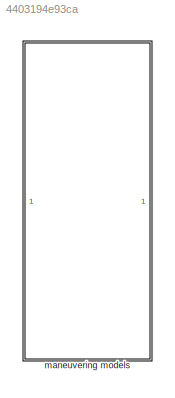
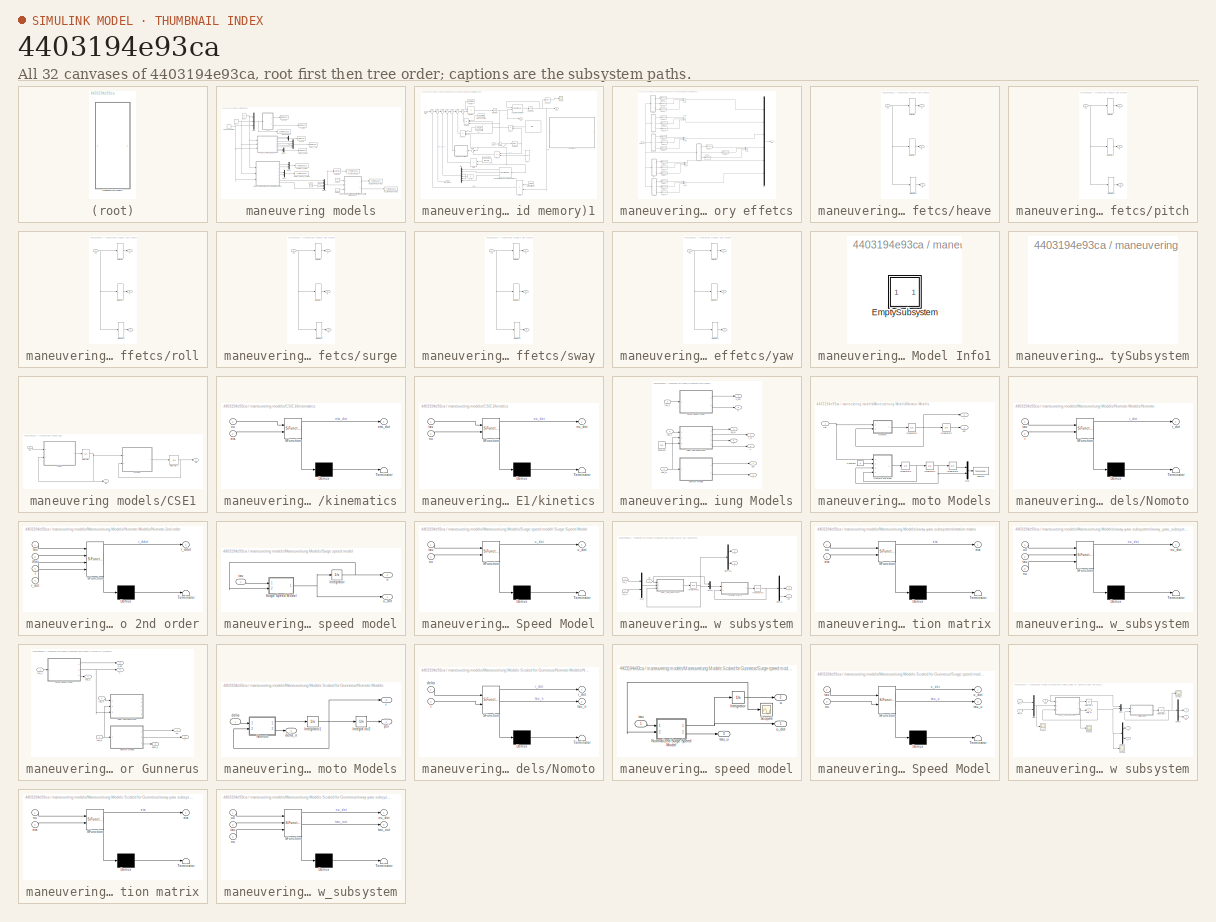
[diagram: thumbnail index - all 32 canvases of the model, root first then tree order]
MODEL slx_4403194e93ca
KIND model
CONFIG AbsTol = auto
CONFIG EnableMultiTasking = off
CONFIG FixedStep = auto
CONFIG MaxStep = auto
CONFIG MinStep = auto
CONFIG RelTol = 1e-3
CONFIG SampleTimeConstraint = Unconstrained
CONFIG Solver = VariableStepAuto
CONFIG SolverName = VariableStepAuto
CONFIG StartTime = 0.0
CONFIG StopTime = 200
BLOCK [SubSystem] maneuvering models
  Ports = []
  RequestExecContextInheritance = off
  Variant = off
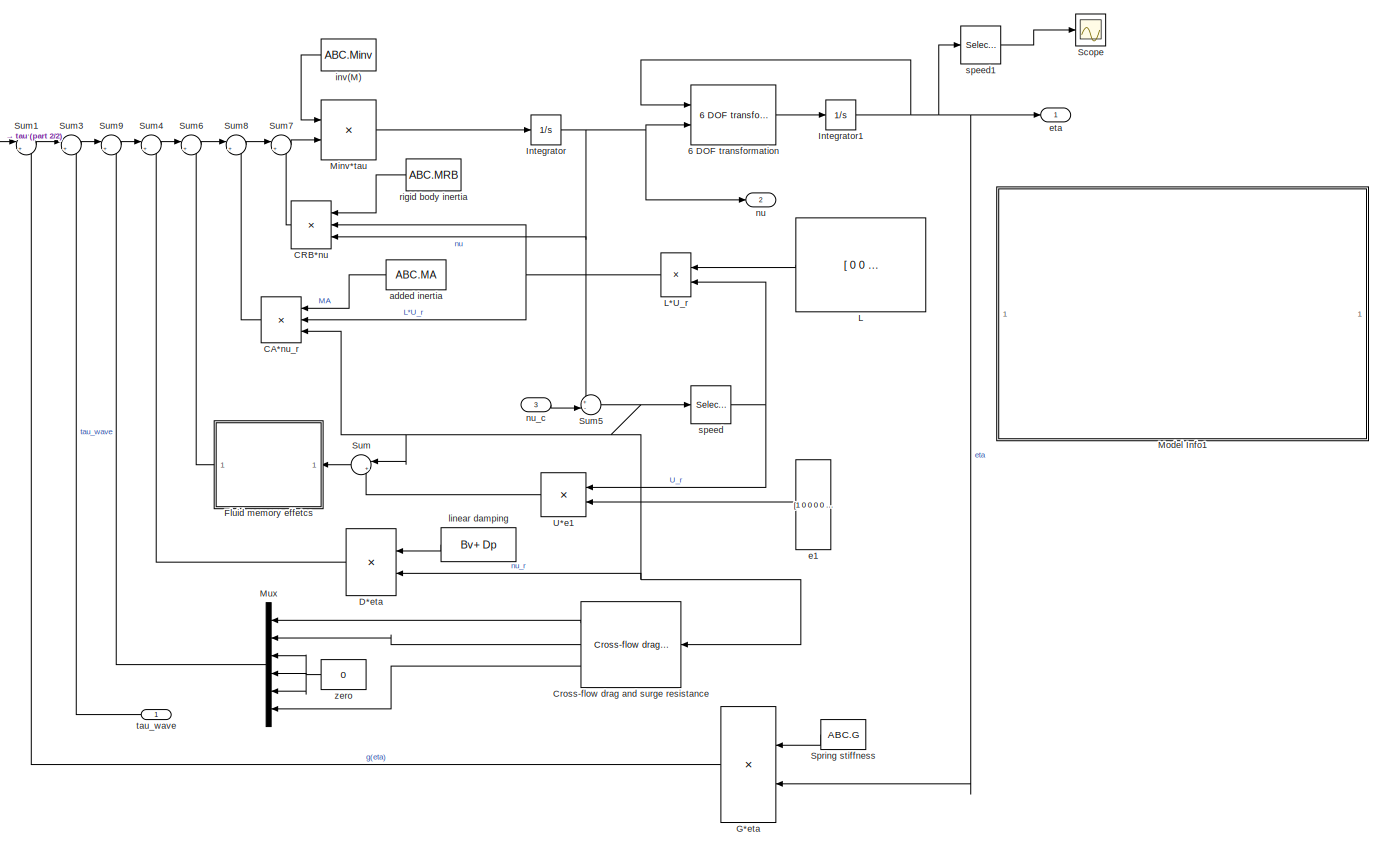
[diagram: maneuvering models/6 DOF Maneuvering model (unified model with fluid memory)1 - part 1/2, most of the canvas]
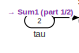
[diagram: maneuvering models/6 DOF Maneuvering model (unified model with fluid memory)1 - part 2/2, top left region]
BLOCK [SubSystem] maneuvering models/6 DOF Maneuvering model (unified model with fluid memory)1
  AncestorBlock = marine_hydro/Hydro Library/6 DOF Maneuvering model\n (unified model with fluid memory)
  Ports = [3, 2]
  RequestExecContextInheritance = off
  Variant = off
BLOCK [Reference] maneuvering models/6 DOF Maneuvering model (unified model with fluid memory)1/6 DOF transformation  REF=marine_gnc/Models/ Kinematics/6 DOF transformation  (lib defined in mdl_10d96c221ba8, mdl_45f1105420c6)
  Ports = [2, 1]
  SourceBlock = marine_gnc/Models/ Kinematics/6 DOF transformation
  SourceType = SubSystem
BLOCK [Product] maneuvering models/6 DOF Maneuvering model (unified model with fluid memory)1/CA*nu_r
  InputSameDT = off
  Inputs = 3
  Multiplication = Matrix(*)
  OutDataTypeStr = Inherit: Inherit via internal rule
  Ports = [3, 1]
  SaturateOnIntegerOverflow = off
BLOCK [Product] maneuvering models/6 DOF Maneuvering model (unified model with fluid memory)1/CRB*nu
  InputSameDT = off
  Inputs = 3
  Multiplication = Matrix(*)
  OutDataTypeStr = Inherit: Inherit via internal rule
  Ports = [3, 1]
  SaturateOnIntegerOverflow = off
BLOCK [Reference] maneuvering models/6 DOF Maneuvering model (unified model with fluid memory)1/Cross-flow drag and surge resistance  REF=marine_hydro/Hydro Library/Cross-flow drag and surge resistance
  Ports = [1, 3]
  SourceBlock = marine_hydro/Hydro Library/Cross-flow drag and surge resistance
  SourceType = Cross-flow drag and surge resistance
BLOCK [Product] maneuvering models/6 DOF Maneuvering model (unified model with fluid memory)1/D*eta 
  InputSameDT = off
  Multiplication = Matrix(*)
  Ports = [2, 1]
  RndMeth = Floor
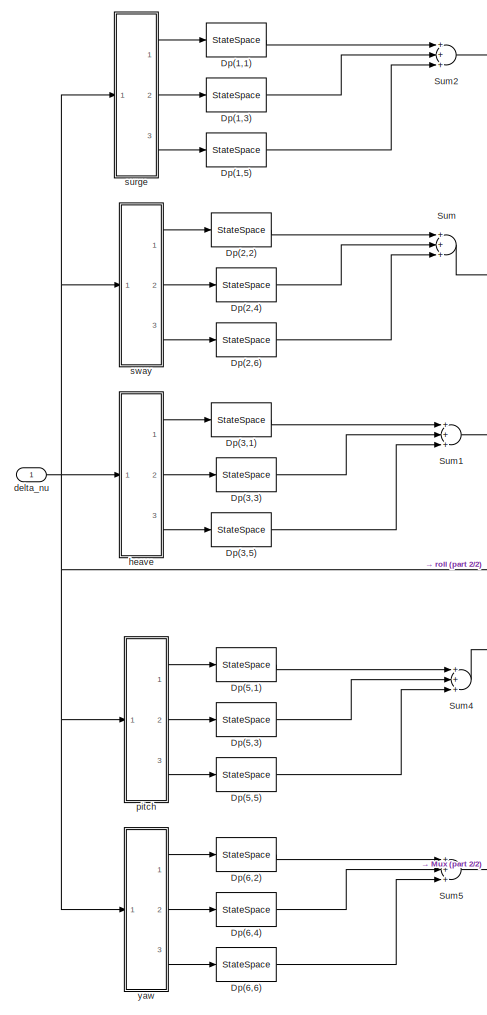
[diagram: maneuvering models/6 DOF Maneuvering model (unified model with fluid memory)1/Fluid memory effetcs - part 1/2, left side, full height]
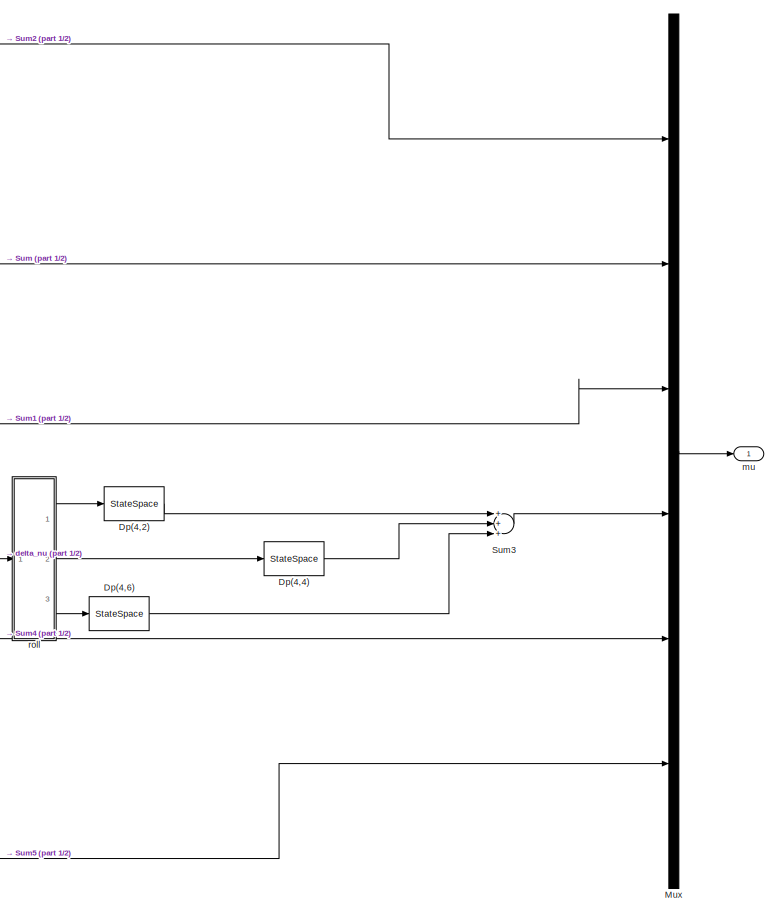
[diagram: maneuvering models/6 DOF Maneuvering model (unified model with fluid memory)1/Fluid memory effetcs - part 2/2, right side, full height]
BLOCK [SubSystem] maneuvering models/6 DOF Maneuvering model (unified model with fluid memory)1/Fluid memory effetcs
  Ports = [1, 1]
  RequestExecContextInheritance = off
  Variant = off
BLOCK [StateSpace] maneuvering models/6 DOF Maneuvering model (unified model with fluid memory)1/Fluid memory effetcs/Dp(1,1)
  A = ABC.Ar{1,1}
  B = ABC.Br{1,1}
  C = ABC.Cr{1,1}
  D = ABC.Dr{1,1}
  Ports = [1, 1]
  X0 = 0
BLOCK [StateSpace] maneuvering models/6 DOF Maneuvering model (unified model with fluid memory)1/Fluid memory effetcs/Dp(1,3)
  A = ABC.Ar{1,3}
  B = ABC.Br{1,3}
  C = ABC.Cr{1,3}
  D = ABC.Dr{1,3}
  Ports = [1, 1]
  X0 = 0
BLOCK [StateSpace] maneuvering models/6 DOF Maneuvering model (unified model with fluid memory)1/Fluid memory effetcs/Dp(1,5)
  A = ABC.Ar{1,5}
  B = ABC.Br{1,5}
  C = ABC.Cr{1,5}
  D = ABC.Dr{1,5}
  Ports = [1, 1]
  X0 = 0
BLOCK [StateSpace] maneuvering models/6 DOF Maneuvering model (unified model with fluid memory)1/Fluid memory effetcs/Dp(2,2)
  A = ABC.Ar{2,2}
  B = ABC.Br{2,2}
  C = ABC.Cr{2,2}
  D = ABC.Dr{2,2}
  Ports = [1, 1]
  X0 = 0
BLOCK [StateSpace] maneuvering models/6 DOF Maneuvering model (unified model with fluid memory)1/Fluid memory effetcs/Dp(2,4)
  A = ABC.Ar{2,4}
  B = ABC.Br{2,4}
  C = ABC.Cr{2,4}
  D = ABC.Dr{2,4}
  Ports = [1, 1]
  X0 = 0
BLOCK [StateSpace] maneuvering models/6 DOF Maneuvering model (unified model with fluid memory)1/Fluid memory effetcs/Dp(2,6)
  A = ABC.Ar{2,6}
  B = ABC.Br{2,6}
  C = ABC.Cr{2,6}
  D = ABC.Dr{2,6}
  Ports = [1, 1]
  X0 = 0
BLOCK [StateSpace] maneuvering models/6 DOF Maneuvering model (unified model with fluid memory)1/Fluid memory effetcs/Dp(3,1)
  A = ABC.Ar{3,1}
  B = ABC.Br{3,1}
  C = ABC.Cr{3,1}
  D = ABC.Dr{3,1}
  Ports = [1, 1]
  X0 = 0
BLOCK [StateSpace] maneuvering models/6 DOF Maneuvering model (unified model with fluid memory)1/Fluid memory effetcs/Dp(3,3)
  A = ABC.Ar{3,3}
  B = ABC.Br{3,3}
  C = ABC.Cr{3,3}
  D = ABC.Dr{3,3}
  Ports = [1, 1]
  X0 = 0
BLOCK [StateSpace] maneuvering models/6 DOF Maneuvering model (unified model with fluid memory)1/Fluid memory effetcs/Dp(3,5)
  A = ABC.Ar{3,5}
  B = ABC.Br{3,5}
  C = ABC.Cr{3,5}
  D = ABC.Dr{3,5}
  Ports = [1, 1]
  X0 = 0
BLOCK [StateSpace] maneuvering models/6 DOF Maneuvering model (unified model with fluid memory)1/Fluid memory effetcs/Dp(4,2)
  A = ABC.Ar{4,2}
  B = ABC.Br{4,2}
  C = ABC.Cr{4,2}
  D = ABC.Dr{4,2}
  Ports = [1, 1]
  X0 = 0
BLOCK [StateSpace] maneuvering models/6 DOF Maneuvering model (unified model with fluid memory)1/Fluid memory effetcs/Dp(4,4)
  A = ABC.Ar{4,4}
  B = ABC.Br{4,4}
  C = ABC.Cr{4,4}
  D = ABC.Dr{4,4}
  Ports = [1, 1]
  X0 = 0
BLOCK [StateSpace] maneuvering models/6 DOF Maneuvering model (unified model with fluid memory)1/Fluid memory effetcs/Dp(4,6)
  A = ABC.Ar{4,6}
  B = ABC.Br{4,6}
  C = ABC.Cr{4,6}
  D = ABC.Dr{4,6}
  Ports = [1, 1]
  X0 = 0
BLOCK [StateSpace] maneuvering models/6 DOF Maneuvering model (unified model with fluid memory)1/Fluid memory effetcs/Dp(5,1)
  A = ABC.Ar{5,1}
  B = ABC.Br{5,1}
  C = ABC.Cr{5,1}
  D = ABC.Dr{5,1}
  Ports = [1, 1]
  X0 = 0
BLOCK [StateSpace] maneuvering models/6 DOF Maneuvering model (unified model with fluid memory)1/Fluid memory effetcs/Dp(5,3)
  A = ABC.Ar{5,3}
  B = ABC.Br{5,3}
  C = ABC.Cr{5,3}
  D = ABC.Dr{5,3}
  Ports = [1, 1]
  X0 = 0
BLOCK [StateSpace] maneuvering models/6 DOF Maneuvering model (unified model with fluid memory)1/Fluid memory effetcs/Dp(5,5)
  A = ABC.Ar{5,5}
  B = ABC.Br{5,5}
  C = ABC.Cr{5,5}
  D = ABC.Dr{5,5}
  Ports = [1, 1]
  X0 = 0
BLOCK [StateSpace] maneuvering models/6 DOF Maneuvering model (unified model with fluid memory)1/Fluid memory effetcs/Dp(6,2)
  A = ABC.Ar{6,2}
  B = ABC.Br{6,2}
  C = ABC.Cr{6,2}
  D = ABC.Dr{6,2}
  Ports = [1, 1]
  X0 = 0
BLOCK [StateSpace] maneuvering models/6 DOF Maneuvering model (unified model with fluid memory)1/Fluid memory effetcs/Dp(6,4)
  A = ABC.Ar{6,4}
  B = ABC.Br{6,4}
  C = ABC.Cr{6,4}
  D = ABC.Dr{6,4}
  Ports = [1, 1]
  X0 = 0
BLOCK [StateSpace] maneuvering models/6 DOF Maneuvering model (unified model with fluid memory)1/Fluid memory effetcs/Dp(6,6)
  A = ABC.Ar{6,6}
  B = ABC.Br{6,6}
  C = ABC.Cr{6,6}
  D = ABC.Dr{6,6}
  Ports = [1, 1]
  X0 = 0
BLOCK [Mux] maneuvering models/6 DOF Maneuvering model (unified model with fluid memory)1/Fluid memory effetcs/Mux
  DisplayOption = bar
  Inputs = 6
  Ports = [6, 1]
BLOCK [Sum] maneuvering models/6 DOF Maneuvering model (unified model with fluid memory)1/Fluid memory effetcs/Sum
  InputSameDT = off
  Inputs = +++
  OutDataTypeStr = Inherit: Inherit via internal rule
  Ports = [3, 1]
BLOCK [Sum] maneuvering models/6 DOF Maneuvering model (unified model with fluid memory)1/Fluid memory effetcs/Sum1
  InputSameDT = off
  Inputs = +++
  OutDataTypeStr = Inherit: Inherit via internal rule
  Ports = [3, 1]
BLOCK [Sum] maneuvering models/6 DOF Maneuvering model (unified model with fluid memory)1/Fluid memory effetcs/Sum2
  InputSameDT = off
  Inputs = +++
  OutDataTypeStr = Inherit: Inherit via internal rule
  Ports = [3, 1]
BLOCK [Sum] maneuvering models/6 DOF Maneuvering model (unified model with fluid memory)1/Fluid memory effetcs/Sum3
  InputSameDT = off
  Inputs = +++
  OutDataTypeStr = Inherit: Inherit via internal rule
  Ports = [3, 1]
BLOCK [Sum] maneuvering models/6 DOF Maneuvering model (unified model with fluid memory)1/Fluid memory effetcs/Sum4
  InputSameDT = off
  Inputs = +++
  OutDataTypeStr = Inherit: Inherit via internal rule
  Ports = [3, 1]
BLOCK [Sum] maneuvering models/6 DOF Maneuvering model (unified model with fluid memory)1/Fluid memory effetcs/Sum5
  InputSameDT = off
  Inputs = +++
  OutDataTypeStr = Inherit: Inherit via internal rule
  Ports = [3, 1]
BLOCK [Inport] maneuvering models/6 DOF Maneuvering model (unified model with fluid memory)1/Fluid memory effetcs/delta_nu
  IconDisplay = Port number
BLOCK [SubSystem] maneuvering models/6 DOF Maneuvering model (unified model with fluid memory)1/Fluid memory effetcs/heave
  Ports = [1, 3]
  RequestExecContextInheritance = off
  Variant = off
BLOCK [Selector] maneuvering models/6 DOF Maneuvering model (unified model with fluid memory)1/Fluid memory effetcs/heave/Selector
  IndexOptions = Index vector (dialog)
  Indices = [1]
  InputPortWidth = 6
  OutputSizes = 1
  Ports = [1, 1]
BLOCK [Selector] maneuvering models/6 DOF Maneuvering model (unified model with fluid memory)1/Fluid memory effetcs/heave/Selector1
  IndexOptions = Index vector (dialog)
  Indices = [3]
  InputPortWidth = 6
  OutputSizes = 1
  Ports = [1, 1]
BLOCK [Selector] maneuvering models/6 DOF Maneuvering model (unified model with fluid memory)1/Fluid memory effetcs/heave/Selector2
  IndexOptions = Index vector (dialog)
  Indices = [5]
  InputPortWidth = 6
  OutputSizes = 1
  Ports = [1, 1]
BLOCK [Inport] maneuvering models/6 DOF Maneuvering model (unified model with fluid memory)1/Fluid memory effetcs/heave/nu
  IconDisplay = Port number
BLOCK [Outport] maneuvering models/6 DOF Maneuvering model (unified model with fluid memory)1/Fluid memory effetcs/heave/q
  IconDisplay = Port number
  Port = 3
BLOCK [Outport] maneuvering models/6 DOF Maneuvering model (unified model with fluid memory)1/Fluid memory effetcs/heave/u
  IconDisplay = Port number
BLOCK [Outport] maneuvering models/6 DOF Maneuvering model (unified model with fluid memory)1/Fluid memory effetcs/heave/w
  IconDisplay = Port number
  Port = 2
BLOCK [Outport] maneuvering models/6 DOF Maneuvering model (unified model with fluid memory)1/Fluid memory effetcs/mu
  IconDisplay = Port number
BLOCK [SubSystem] maneuvering models/6 DOF Maneuvering model (unified model with fluid memory)1/Fluid memory effetcs/pitch
  Ports = [1, 3]
  RequestExecContextInheritance = off
  Variant = off
BLOCK [Selector] maneuvering models/6 DOF Maneuvering model (unified model with fluid memory)1/Fluid memory effetcs/pitch/Selector
  IndexOptions = Index vector (dialog)
  Indices = [1]
  InputPortWidth = 6
  OutputSizes = 1
  Ports = [1, 1]
BLOCK [Selector] maneuvering models/6 DOF Maneuvering model (unified model with fluid memory)1/Fluid memory effetcs/pitch/Selector1
  IndexOptions = Index vector (dialog)
  Indices = [3]
  InputPortWidth = 6
  OutputSizes = 1
  Ports = [1, 1]
BLOCK [Selector] maneuvering models/6 DOF Maneuvering model (unified model with fluid memory)1/Fluid memory effetcs/pitch/Selector2
  IndexOptions = Index vector (dialog)
  Indices = [5]
  InputPortWidth = 6
  OutputSizes = 1
  Ports = [1, 1]
BLOCK [Inport] maneuvering models/6 DOF Maneuvering model (unified model with fluid memory)1/Fluid memory effetcs/pitch/nu
  IconDisplay = Port number
BLOCK [Outport] maneuvering models/6 DOF Maneuvering model (unified model with fluid memory)1/Fluid memory effetcs/pitch/q
  IconDisplay = Port number
  Port = 3
BLOCK [Outport] maneuvering models/6 DOF Maneuvering model (unified model with fluid memory)1/Fluid memory effetcs/pitch/u
  IconDisplay = Port number
BLOCK [Outport] maneuvering models/6 DOF Maneuvering model (unified model with fluid memory)1/Fluid memory effetcs/pitch/w
  IconDisplay = Port number
  Port = 2
BLOCK [SubSystem] maneuvering models/6 DOF Maneuvering model (unified model with fluid memory)1/Fluid memory effetcs/roll
  Ports = [1, 3]
  RequestExecContextInheritance = off
  Variant = off
BLOCK [Selector] maneuvering models/6 DOF Maneuvering model (unified model with fluid memory)1/Fluid memory effetcs/roll/Selector
  IndexOptions = Index vector (dialog)
  Indices = [2]
  InputPortWidth = 6
  OutputSizes = 1
  Ports = [1, 1]
BLOCK [Selector] maneuvering models/6 DOF Maneuvering model (unified model with fluid memory)1/Fluid memory effetcs/roll/Selector1
  IndexOptions = Index vector (dialog)
  Indices = [4]
  InputPortWidth = 6
  OutputSizes = 1
  Ports = [1, 1]
BLOCK [Selector] maneuvering models/6 DOF Maneuvering model (unified model with fluid memory)1/Fluid memory effetcs/roll/Selector2
  IndexOptions = Index vector (dialog)
  Indices = [6]
  InputPortWidth = 6
  OutputSizes = 1
  Ports = [1, 1]
BLOCK [Inport] maneuvering models/6 DOF Maneuvering model (unified model with fluid memory)1/Fluid memory effetcs/roll/nu
  IconDisplay = Port number
BLOCK [Outport] maneuvering models/6 DOF Maneuvering model (unified model with fluid memory)1/Fluid memory effetcs/roll/p
  IconDisplay = Port number
  Port = 2
BLOCK [Outport] maneuvering models/6 DOF Maneuvering model (unified model with fluid memory)1/Fluid memory effetcs/roll/r
  IconDisplay = Port number
  Port = 3
BLOCK [Outport] maneuvering models/6 DOF Maneuvering model (unified model with fluid memory)1/Fluid memory effetcs/roll/v
  IconDisplay = Port number
BLOCK [SubSystem] maneuvering models/6 DOF Maneuvering model (unified model with fluid memory)1/Fluid memory effetcs/surge
  Ports = [1, 3]
  RequestExecContextInheritance = off
  Variant = off
BLOCK [Selector] maneuvering models/6 DOF Maneuvering model (unified model with fluid memory)1/Fluid memory effetcs/surge/Selector
  IndexOptions = Index vector (dialog)
  Indices = [1]
  InputPortWidth = 6
  OutputSizes = 1
  Ports = [1, 1]
BLOCK [Selector] maneuvering models/6 DOF Maneuvering model (unified model with fluid memory)1/Fluid memory effetcs/surge/Selector1
  IndexOptions = Index vector (dialog)
  Indices = [3]
  InputPortWidth = 6
  OutputSizes = 1
  Ports = [1, 1]
BLOCK [Selector] maneuvering models/6 DOF Maneuvering model (unified model with fluid memory)1/Fluid memory effetcs/surge/Selector2
  IndexOptions = Index vector (dialog)
  Indices = [5]
  InputPortWidth = 6
  OutputSizes = 1
  Ports = [1, 1]
BLOCK [Inport] maneuvering models/6 DOF Maneuvering model (unified model with fluid memory)1/Fluid memory effetcs/surge/nu
  IconDisplay = Port number
BLOCK [Outport] maneuvering models/6 DOF Maneuvering model (unified model with fluid memory)1/Fluid memory effetcs/surge/q
  IconDisplay = Port number
  Port = 3
BLOCK [Outport] maneuvering models/6 DOF Maneuvering model (unified model with fluid memory)1/Fluid memory effetcs/surge/u
  IconDisplay = Port number
BLOCK [Outport] maneuvering models/6 DOF Maneuvering model (unified model with fluid memory)1/Fluid memory effetcs/surge/w
  IconDisplay = Port number
  Port = 2
BLOCK [SubSystem] maneuvering models/6 DOF Maneuvering model (unified model with fluid memory)1/Fluid memory effetcs/sway
  Ports = [1, 3]
  RequestExecContextInheritance = off
  Variant = off
BLOCK [Selector] maneuvering models/6 DOF Maneuvering model (unified model with fluid memory)1/Fluid memory effetcs/sway/Selector
  IndexOptions = Index vector (dialog)
  Indices = [2]
  InputPortWidth = 6
  OutputSizes = 1
  Ports = [1, 1]
BLOCK [Selector] maneuvering models/6 DOF Maneuvering model (unified model with fluid memory)1/Fluid memory effetcs/sway/Selector1
  IndexOptions = Index vector (dialog)
  Indices = [4]
  InputPortWidth = 6
  OutputSizes = 1
  Ports = [1, 1]
BLOCK [Selector] maneuvering models/6 DOF Maneuvering model (unified model with fluid memory)1/Fluid memory effetcs/sway/Selector2
  IndexOptions = Index vector (dialog)
  Indices = [6]
  InputPortWidth = 6
  OutputSizes = 1
  Ports = [1, 1]
BLOCK [Inport] maneuvering models/6 DOF Maneuvering model (unified model with fluid memory)1/Fluid memory effetcs/sway/nu
  IconDisplay = Port number
BLOCK [Outport] maneuvering models/6 DOF Maneuvering model (unified model with fluid memory)1/Fluid memory effetcs/sway/p
  IconDisplay = Port number
  Port = 2
BLOCK [Outport] maneuvering models/6 DOF Maneuvering model (unified model with fluid memory)1/Fluid memory effetcs/sway/r
  IconDisplay = Port number
  Port = 3
BLOCK [Outport] maneuvering models/6 DOF Maneuvering model (unified model with fluid memory)1/Fluid memory effetcs/sway/v
  IconDisplay = Port number
BLOCK [SubSystem] maneuvering models/6 DOF Maneuvering model (unified model with fluid memory)1/Fluid memory effetcs/yaw
  Ports = [1, 3]
  RequestExecContextInheritance = off
  Variant = off
BLOCK [Selector] maneuvering models/6 DOF Maneuvering model (unified model with fluid memory)1/Fluid memory effetcs/yaw/Selector
  IndexOptions = Index vector (dialog)
  Indices = [2]
  InputPortWidth = 6
  OutputSizes = 1
  Ports = [1, 1]
BLOCK [Selector] maneuvering models/6 DOF Maneuvering model (unified model with fluid memory)1/Fluid memory effetcs/yaw/Selector1
  IndexOptions = Index vector (dialog)
  Indices = [4]
  InputPortWidth = 6
  OutputSizes = 1
  Ports = [1, 1]
BLOCK [Selector] maneuvering models/6 DOF Maneuvering model (unified model with fluid memory)1/Fluid memory effetcs/yaw/Selector2
  IndexOptions = Index vector (dialog)
  Indices = [6]
  InputPortWidth = 6
  OutputSizes = 1
  Ports = [1, 1]
BLOCK [Inport] maneuvering models/6 DOF Maneuvering model (unified model with fluid memory)1/Fluid memory effetcs/yaw/nu
  IconDisplay = Port number
BLOCK [Outport] maneuvering models/6 DOF Maneuvering model (unified model with fluid memory)1/Fluid memory effetcs/yaw/p
  IconDisplay = Port number
  Port = 2
BLOCK [Outport] maneuvering models/6 DOF Maneuvering model (unified model with fluid memory)1/Fluid memory effetcs/yaw/r
  IconDisplay = Port number
  Port = 3
BLOCK [Outport] maneuvering models/6 DOF Maneuvering model (unified model with fluid memory)1/Fluid memory effetcs/yaw/v
  IconDisplay = Port number
BLOCK [Product] maneuvering models/6 DOF Maneuvering model (unified model with fluid memory)1/G*eta
  InputSameDT = off
  Multiplication = Matrix(*)
  Ports = [2, 1]
  RndMeth = Floor
BLOCK [Integrator] maneuvering models/6 DOF Maneuvering model (unified model with fluid memory)1/Integrator
  Ports = [1, 1]
BLOCK [Integrator] maneuvering models/6 DOF Maneuvering model (unified model with fluid memory)1/Integrator1
  Ports = [1, 1]
BLOCK [Constant] maneuvering models/6 DOF Maneuvering model (unified model with fluid memory)1/L
  Value = [ 0     0     0     0     0     0;   0     0     0     0     0     1;\n     0     0     0     0    -1     0;	\n     0     0     0     0     0     0	;\n     0     0     0     0     0     0	\n;     0     0     0     0     0     0]
BLOCK [Product] maneuvering models/6 DOF Maneuvering model (unified model with fluid memory)1/L*U_r
  InputSameDT = off
  OutDataTypeStr = Inherit: Inherit via internal rule
  Ports = [2, 1]
  SaturateOnIntegerOverflow = off
BLOCK [Product] maneuvering models/6 DOF Maneuvering model (unified model with fluid memory)1/Minv*tau
  InputSameDT = off
  Inputs = **
  Multiplication = Matrix(*)
  Ports = [2, 1]
  RndMeth = Floor
BLOCK [SubSystem] maneuvering models/6 DOF Maneuvering model (unified model with fluid memory)1/Model Info1
  CopyFcn = slcm CopyBlock;
  DeleteFcn = slcm Cancel;
  InitFcn = slcm('UpdateAllCMBlocksInThisModelInit')
  LoadFcn = slcm LoadBlock;
  NameChangeFcn = slcm Rename;
  OpenFcn = slcm
  Ports = []
  PostSaveFcn = slcm('UpdateAllCMBlocksInThisModel')
  RequestExecContextInheritance = off
  Variant = off
BLOCK [SubSystem] maneuvering models/6 DOF Maneuvering model (unified model with fluid memory)1/Model Info1/EmptySubsystem
  Ports = []
  RequestExecContextInheritance = off
  Variant = off
BLOCK [Mux] maneuvering models/6 DOF Maneuvering model (unified model with fluid memory)1/Mux
  DisplayOption = bar
  Inputs = 6
  Ports = [6, 1]
BLOCK [Scope] maneuvering models/6 DOF Maneuvering model (unified model with fluid memory)1/Scope
  NumInputPorts = 1
  Ports = [1]
  ScopeSpecificationString = Simulink.scopes.TimeScopeBlockCfg('CurrentConfiguration', extmgr.ConfigurationSet(extmgr.Configuration('Core','General UI',true),extmgr.Configuration('Core','Source UI',true),extmgr.Configuration('Sources','WiredSimulink',true,'DataLoggingVariableName','ScopeData1'),extmgr.Configuration('Visuals','Time Domain',true,'SerializedDisplays',{struct('MinYLimReal','0.52283','MaxYLimReal','0.52499','YLabe...<+1409ch>
BLOCK [Constant] maneuvering models/6 DOF Maneuvering model (unified model with fluid memory)1/Spring stiffness
  Value = ABC.G
BLOCK [Sum] maneuvering models/6 DOF Maneuvering model (unified model with fluid memory)1/Sum
  IconShape = round
  InputSameDT = off
  Inputs = |+-
  OutDataTypeStr = Inherit: Inherit via internal rule
  Ports = [2, 1]
  SaturateOnIntegerOverflow = off
BLOCK [Sum] maneuvering models/6 DOF Maneuvering model (unified model with fluid memory)1/Sum1
  IconShape = round
  InputSameDT = off
  Inputs = |+-
  OutDataTypeStr = Inherit: Inherit via internal rule
  Ports = [2, 1]
BLOCK [Sum] maneuvering models/6 DOF Maneuvering model (unified model with fluid memory)1/Sum3
  IconShape = round
  InputSameDT = off
  Inputs = |++
  OutDataTypeStr = Inherit: Inherit via internal rule
  Ports = [2, 1]
BLOCK [Sum] maneuvering models/6 DOF Maneuvering model (unified model with fluid memory)1/Sum4
  IconShape = round
  InputSameDT = off
  Inputs = |+-
  OutDataTypeStr = Inherit: Inherit via internal rule
  Ports = [2, 1]
BLOCK [Sum] maneuvering models/6 DOF Maneuvering model (unified model with fluid memory)1/Sum5
  IconShape = round
  InputSameDT = off
  Inputs = +-|
  OutDataTypeStr = Inherit: Inherit via internal rule
  Ports = [2, 1]
BLOCK [Sum] maneuvering models/6 DOF Maneuvering model (unified model with fluid memory)1/Sum6
  IconShape = round
  InputSameDT = off
  Inputs = |+-
  OutDataTypeStr = Inherit: Inherit via internal rule
  Ports = [2, 1]
BLOCK [Sum] maneuvering models/6 DOF Maneuvering model (unified model with fluid memory)1/Sum7
  IconShape = round
  InputSameDT = off
  Inputs = |+-
  OutDataTypeStr = Inherit: Inherit via internal rule
  Ports = [2, 1]
BLOCK [Sum] maneuvering models/6 DOF Maneuvering model (unified model with fluid memory)1/Sum8
  IconShape = round
  InputSameDT = off
  Inputs = |+-
  OutDataTypeStr = Inherit: Inherit via internal rule
  Ports = [2, 1]
BLOCK [Sum] maneuvering models/6 DOF Maneuvering model (unified model with fluid memory)1/Sum9
  IconShape = round
  InputSameDT = off
  Inputs = |++
  OutDataTypeStr = Inherit: Inherit via internal rule
  Ports = [2, 1]
BLOCK [Product] maneuvering models/6 DOF Maneuvering model (unified model with fluid memory)1/U*e1
  InputSameDT = off
  OutDataTypeStr = Inherit: Inherit via internal rule
  Ports = [2, 1]
  SaturateOnIntegerOverflow = off
BLOCK [Constant] maneuvering models/6 DOF Maneuvering model (unified model with fluid memory)1/added inertia
  Value = ABC.MA
BLOCK [Constant] maneuvering models/6 DOF Maneuvering model (unified model with fluid memory)1/e1
  Value = [1 0 0 0 0 0]'
  VectorParams1D = off
BLOCK [Outport] maneuvering models/6 DOF Maneuvering model (unified model with fluid memory)1/eta
  IconDisplay = Port number
BLOCK [Constant] maneuvering models/6 DOF Maneuvering model (unified model with fluid memory)1/inv(M)
  Value = ABC.Minv
BLOCK [Constant] maneuvering models/6 DOF Maneuvering model (unified model with fluid memory)1/linear damping
  Value = Bv+ Dp
BLOCK [Outport] maneuvering models/6 DOF Maneuvering model (unified model with fluid memory)1/nu
  IconDisplay = Port number
  Port = 2
BLOCK [Inport] maneuvering models/6 DOF Maneuvering model (unified model with fluid memory)1/nu_c
  IconDisplay = Port number
  Port = 3
BLOCK [Constant] maneuvering models/6 DOF Maneuvering model (unified model with fluid memory)1/rigid body inertia
  Value = ABC.MRB
BLOCK [Selector] maneuvering models/6 DOF Maneuvering model (unified model with fluid memory)1/speed
  IndexOptions = Index vector (dialog)
  Indices = [1]
  InputPortWidth = 6
  OutputSizes = 1
  Ports = [1, 1]
BLOCK [Selector] maneuvering models/6 DOF Maneuvering model (unified model with fluid memory)1/speed1
  IndexOptions = Index vector (dialog)
  Indices = [6]
  InputPortWidth = 6
  OutputSizes = 1
  Ports = [1, 1]
BLOCK [Inport] maneuvering models/6 DOF Maneuvering model (unified model with fluid memory)1/tau
  IconDisplay = Port number
  Port = 2
BLOCK [Inport] maneuvering models/6 DOF Maneuvering model (unified model with fluid memory)1/tau_wave
  IconDisplay = Port number
BLOCK [Constant] maneuvering models/6 DOF Maneuvering model (unified model with fluid memory)1/zero
  Value = 0
BLOCK [SubSystem] maneuvering models/CSE1
  Ports = [1, 2]
  RequestExecContextInheritance = off
  Variant = off
BLOCK [Integrator] maneuvering models/CSE1/Integrator
  InitialCondition = [0 0 0]'
  Ports = [1, 1]
BLOCK [Integrator] maneuvering models/CSE1/Integrator1
  InitialCondition = [0 0 0]'
  Ports = [1, 1]
BLOCK [Outport] maneuvering models/CSE1/eta
  IconDisplay = Port number
BLOCK [SubSystem] maneuvering models/CSE1/kinematics
  ErrorFcn = Stateflow.Translate.translate
  PermitHierarchicalResolution = ExplicitOnly
  Ports = [2, 1]
  RequestExecContextInheritance = off
  SFBlockType = MATLAB Function
  TreatAsAtomicUnit = on
  Variant = off
BLOCK [Demux] maneuvering models/CSE1/kinematics/ Demux 
  Outputs = 1
  Ports = [1, 1]
BLOCK [S-Function] maneuvering models/CSE1/kinematics/ SFunction 
  EnableBusSupport = on
  FunctionName = sf_sfun
  PortCounts = [2 2]
  Ports = [2, 2]
  SFcnIsStateOwnerBlock = off
  SFunctionDeploymentMode = off
  Tag = Stateflow S-Function maneuvering 70
BLOCK [Terminator] maneuvering models/CSE1/kinematics/ Terminator 
BLOCK [Inport] maneuvering models/CSE1/kinematics/eta
  IconDisplay = Port number
  Port = 2
BLOCK [Outport] maneuvering models/CSE1/kinematics/eta_dot
  IconDisplay = Port number
BLOCK [Inport] maneuvering models/CSE1/kinematics/nu
  IconDisplay = Port number
BLOCK [SubSystem] maneuvering models/CSE1/kinetics
  ErrorFcn = Stateflow.Translate.translate
  PermitHierarchicalResolution = ExplicitOnly
  Ports = [2, 1]
  RequestExecContextInheritance = off
  SFBlockType = MATLAB Function
  TreatAsAtomicUnit = on
  Variant = off
BLOCK [Demux] maneuvering models/CSE1/kinetics/ Demux 
  Outputs = 1
  Ports = [1, 1]
BLOCK [S-Function] maneuvering models/CSE1/kinetics/ SFunction 
  EnableBusSupport = on
  FunctionName = sf_sfun
  PortCounts = [2 2]
  Ports = [2, 2]
  SFcnIsStateOwnerBlock = off
  SFunctionDeploymentMode = off
  Tag = Stateflow S-Function maneuvering 71
BLOCK [Terminator] maneuvering models/CSE1/kinetics/ Terminator 
BLOCK [Inport] maneuvering models/CSE1/kinetics/nu
  IconDisplay = Port number
  Port = 2
BLOCK [Outport] maneuvering models/CSE1/kinetics/nu_dot
  IconDisplay = Port number
BLOCK [Inport] maneuvering models/CSE1/kinetics/tau
  IconDisplay = Port number
BLOCK [Outport] maneuvering models/CSE1/nu
  IconDisplay = Port number
  Port = 2
BLOCK [Inport] maneuvering models/CSE1/tau
  IconDisplay = Port number
BLOCK [SubSystem] maneuvering models/Maneuveriung Models
  Ports = [3, 8]
  RequestExecContextInheritance = off
  Variant = off
BLOCK [SubSystem] maneuvering models/Maneuveriung Models Scaled for Gunnerus
  Ports = [3, 6]
  RequestExecContextInheritance = off
  Variant = off
BLOCK [SubSystem] maneuvering models/Maneuveriung Models Scaled for Gunnerus/Nomoto Models
  Ports = [1, 3]
  RequestExecContextInheritance = off
  Variant = off
BLOCK [Integrator] maneuvering models/Maneuveriung Models Scaled for Gunnerus/Nomoto Models/Integra tor2
  Ports = [1, 1]
BLOCK [Integrator] maneuvering models/Maneuveriung Models Scaled for Gunnerus/Nomoto Models/Integrator1
  Ports = [1, 1]
BLOCK [SubSystem] maneuvering models/Maneuveriung Models Scaled for Gunnerus/Nomoto Models/Nomoto
  ErrorFcn = Stateflow.Translate.translate
  PermitHierarchicalResolution = ExplicitOnly
  Ports = [2, 2]
  RequestExecContextInheritance = off
  SFBlockType = MATLAB Function
  TreatAsAtomicUnit = on
  Variant = off
BLOCK [Demux] maneuvering models/Maneuveriung Models Scaled for Gunnerus/Nomoto Models/Nomoto/ Demux 
  Outputs = 1
  Ports = [1, 1]
BLOCK [S-Function] maneuvering models/Maneuveriung Models Scaled for Gunnerus/Nomoto Models/Nomoto/ SFunction 
  EnableBusSupport = on
  FunctionName = sf_sfun
  PortCounts = [2 3]
  Ports = [2, 3]
  SFcnIsStateOwnerBlock = off
  SFunctionDeploymentMode = off
  Tag = Stateflow S-Function maneuvering 55
BLOCK [Terminator] maneuvering models/Maneuveriung Models Scaled for Gunnerus/Nomoto Models/Nomoto/ Terminator 
BLOCK [Inport] maneuvering models/Maneuveriung Models Scaled for Gunnerus/Nomoto Models/Nomoto/delta
  IconDisplay = Port number
BLOCK [Inport] maneuvering models/Maneuveriung Models Scaled for Gunnerus/Nomoto Models/Nomoto/r
  IconDisplay = Port number
  Port = 2
BLOCK [Outport] maneuvering models/Maneuveriung Models Scaled for Gunnerus/Nomoto Models/Nomoto/r_dot
  IconDisplay = Port number
BLOCK [Outport] maneuvering models/Maneuveriung Models Scaled for Gunnerus/Nomoto Models/Nomoto/tau_n
  IconDisplay = Port number
  Port = 2
BLOCK [Inport] maneuvering models/Maneuveriung Models Scaled for Gunnerus/Nomoto Models/delta
  IconDisplay = Port number
BLOCK [Outport] maneuvering models/Maneuveriung Models Scaled for Gunnerus/Nomoto Models/delta_n
  IconDisplay = Port number
  Port = 3
BLOCK [Outport] maneuvering models/Maneuveriung Models Scaled for Gunnerus/Nomoto Models/psi
  IconDisplay = Port number
BLOCK [Outport] maneuvering models/Maneuveriung Models Scaled for Gunnerus/Nomoto Models/r
  IconDisplay = Port number
  Port = 2
BLOCK [SubSystem] maneuvering models/Maneuveriung Models Scaled for Gunnerus/Surge speed model
  Ports = [1, 3]
  RequestExecContextInheritance = off
  Variant = off
BLOCK [Integrator] maneuvering models/Maneuveriung Models Scaled for Gunnerus/Surge speed model/Integrator
  Ports = [1, 1]
BLOCK [SubSystem] maneuvering models/Maneuveriung Models Scaled for Gunnerus/Surge speed model/Normalized Surge Speed Model
  ErrorFcn = Stateflow.Translate.translate
  PermitHierarchicalResolution = ExplicitOnly
  Ports = [2, 2]
  RequestExecContextInheritance = off
  SFBlockType = MATLAB Function
  TreatAsAtomicUnit = on
  Variant = off
BLOCK [Demux] maneuvering models/Maneuveriung Models Scaled for Gunnerus/Surge speed model/Normalized Surge Speed Model/ Demux 
  Outputs = 1
  Ports = [1, 1]
BLOCK [S-Function] maneuvering models/Maneuveriung Models Scaled for Gunnerus/Surge speed model/Normalized Surge Speed Model/ SFunction 
  EnableBusSupport = on
  FunctionName = sf_sfun
  PortCounts = [2 3]
  Ports = [2, 3]
  SFcnIsStateOwnerBlock = off
  SFunctionDeploymentMode = off
  Tag = Stateflow S-Function maneuvering 57
BLOCK [Terminator] maneuvering models/Maneuveriung Models Scaled for Gunnerus/Surge speed model/Normalized Surge Speed Model/ Terminator 
BLOCK [Inport] maneuvering models/Maneuveriung Models Scaled for Gunnerus/Surge speed model/Normalized Surge Speed Model/nu
  IconDisplay = Port number
  Port = 2
BLOCK [Inport] maneuvering models/Maneuveriung Models Scaled for Gunnerus/Surge speed model/Normalized Surge Speed Model/tau
  IconDisplay = Port number
BLOCK [Outport] maneuvering models/Maneuveriung Models Scaled for Gunnerus/Surge speed model/Normalized Surge Speed Model/tau_u
  IconDisplay = Port number
  Port = 2
BLOCK [Outport] maneuvering models/Maneuveriung Models Scaled for Gunnerus/Surge speed model/Normalized Surge Speed Model/u_dot
  IconDisplay = Port number
BLOCK [Scope] maneuvering models/Maneuveriung Models Scaled for Gunnerus/Surge speed model/Scope6
  NumInputPorts = 1
  Ports = [1]
  ScopeSpecificationString = Simulink.scopes.TimeScopeBlockCfg('CurrentConfiguration', extmgr.ConfigurationSet(extmgr.Configuration('Core','General UI',true),extmgr.Configuration('Core','Source UI',true),extmgr.Configuration('Sources','WiredSimulink',true,'DataLoggingVariableName','ScopeData1'),extmgr.Configuration('Visuals','Time Domain',true,'SerializedDisplays',{struct('MinYLimReal','-0.10778','MaxYLimReal','0.97005','YLab...<+1470ch>
BLOCK [Inport] maneuvering models/Maneuveriung Models Scaled for Gunnerus/Surge speed model/tau
  IconDisplay = Port number
BLOCK [Outport] maneuvering models/Maneuveriung Models Scaled for Gunnerus/Surge speed model/tau_u
  IconDisplay = Port number
  Port = 3
BLOCK [Outport] maneuvering models/Maneuveriung Models Scaled for Gunnerus/Surge speed model/u
  IconDisplay = Port number
  Port = 2
BLOCK [Outport] maneuvering models/Maneuveriung Models Scaled for Gunnerus/Surge speed model/u_dot
  IconDisplay = Port number
BLOCK [Outport] maneuvering models/Maneuveriung Models Scaled for Gunnerus/delta_n
  IconDisplay = Port number
  Port = 6
BLOCK [Outport] maneuvering models/Maneuveriung Models Scaled for Gunnerus/psi
  IconDisplay = Port number
BLOCK [Outport] maneuvering models/Maneuveriung Models Scaled for Gunnerus/r
  IconDisplay = Port number
  Port = 2
BLOCK [SubSystem] maneuvering models/Maneuveriung Models Scaled for Gunnerus/sway-yaw subsystem
  Commented = on
  Ports = [3, 5]
  RequestExecContextInheritance = off
  Variant = off
BLOCK [Demux] maneuvering models/Maneuveriung Models Scaled for Gunnerus/sway-yaw subsystem/Demux
  DisplayOption = bar
  Outputs = 3
  Ports = [1, 3]
BLOCK [Demux] maneuvering models/Maneuveriung Models Scaled for Gunnerus/sway-yaw subsystem/Demux1
  DisplayOption = bar
  Outputs = 2
  Ports = [1, 2]
BLOCK [Integrator] maneuvering models/Maneuveriung Models Scaled for Gunnerus/sway-yaw subsystem/Integrator2
  InitialCondition = [0 0]'
  Ports = [1, 1]
BLOCK [Integrator] maneuvering models/Maneuveriung Models Scaled for Gunnerus/sway-yaw subsystem/Integrator3
  InitialCondition = [0 0 0]'
  Ports = [1, 1]
BLOCK [Mux] maneuvering models/Maneuveriung Models Scaled for Gunnerus/sway-yaw subsystem/Mux
  DisplayOption = bar
  Inputs = 2
  Ports = [2, 1]
BLOCK [Mux] maneuvering models/Maneuveriung Models Scaled for Gunnerus/sway-yaw subsystem/Mux1
  DisplayOption = bar
  Inputs = 2
  Ports = [2, 1]
BLOCK [Scope] maneuvering models/Maneuveriung Models Scaled for Gunnerus/sway-yaw subsystem/Scope1
  NumInputPorts = 1
  Ports = [1]
  ScopeSpecificationString = Simulink.scopes.TimeScopeBlockCfg('CurrentConfiguration', extmgr.ConfigurationSet(extmgr.Configuration('Core','General UI',true),extmgr.Configuration('Core','Source UI',true),extmgr.Configuration('Sources','WiredSimulink',true,'DataLoggingVariableName','ScopeData3'),extmgr.Configuration('Visuals','Time Domain',true,'SerializedDisplays',{struct('MinYLimReal','-0.80607','MaxYLimReal','0.80497','YLab...<+1505ch>
BLOCK [Scope] maneuvering models/Maneuveriung Models Scaled for Gunnerus/sway-yaw subsystem/Scope2
  NumInputPorts = 1
  Ports = [1]
  ScopeSpecificationString = Simulink.scopes.TimeScopeBlockCfg('CurrentConfiguration', extmgr.ConfigurationSet(extmgr.Configuration('Core','General UI',true),extmgr.Configuration('Core','Source UI',true),extmgr.Configuration('Sources','WiredSimulink',true,'DataLoggingVariableName','ScopeData4'),extmgr.Configuration('Visuals','Time Domain',true,'SerializedDisplays',{struct('MinYLimReal','-18735.53956','MaxYLimReal','168619.856...<+1553ch>
BLOCK [Scope] maneuvering models/Maneuveriung Models Scaled for Gunnerus/sway-yaw subsystem/Scope3
  NumInputPorts = 1
  Ports = [1]
  ScopeSpecificationString = Simulink.scopes.TimeScopeBlockCfg('CurrentConfiguration', extmgr.ConfigurationSet(extmgr.Configuration('Core','General UI',true),extmgr.Configuration('Core','Source UI',true),extmgr.Configuration('Sources','WiredSimulink',true,'DataLoggingVariableName','ScopeData5'),extmgr.Configuration('Visuals','Time Domain',true,'SerializedDisplays',{struct('MinYLimReal','-0.0125','MaxYLimReal','0.1125','YLabel...<+1467ch>
BLOCK [Scope] maneuvering models/Maneuveriung Models Scaled for Gunnerus/sway-yaw subsystem/Scope6
  NumInputPorts = 1
  Ports = [1]
  ScopeSpecificationString = Simulink.scopes.TimeScopeBlockCfg('CurrentConfiguration', extmgr.ConfigurationSet(extmgr.Configuration('Core','General UI',true),extmgr.Configuration('Core','Source UI',true),extmgr.Configuration('Sources','WiredSimulink',true,'DataLoggingVariableName','ScopeData2'),extmgr.Configuration('Visuals','Time Domain',true,'SerializedDisplays',{struct('MinYLimReal','-0.0205','MaxYLimReal','0.03371','YLabe...<+1459ch>
BLOCK [Outport] maneuvering models/Maneuveriung Models Scaled for Gunnerus/sway-yaw subsystem/delta_sy
  IconDisplay = Port number
  Port = 5
BLOCK [Outport] maneuvering models/Maneuveriung Models Scaled for Gunnerus/sway-yaw subsystem/psi
  IconDisplay = Port number
BLOCK [Outport] maneuvering models/Maneuveriung Models Scaled for Gunnerus/sway-yaw subsystem/r
  IconDisplay = Port number
  Port = 2
BLOCK [SubSystem] maneuvering models/Maneuveriung Models Scaled for Gunnerus/sway-yaw subsystem/rotation matrix
  ErrorFcn = Stateflow.Translate.translate
  PermitHierarchicalResolution = ExplicitOnly
  Ports = [2, 1]
  RequestExecContextInheritance = off
  SFBlockType = MATLAB Function
  TreatAsAtomicUnit = on
  Variant = off
BLOCK [Demux] maneuvering models/Maneuveriung Models Scaled for Gunnerus/sway-yaw subsystem/rotation matrix/ Demux 
  Outputs = 1
  Ports = [1, 1]
BLOCK [S-Function] maneuvering models/Maneuveriung Models Scaled for Gunnerus/sway-yaw subsystem/rotation matrix/ SFunction 
  EnableBusSupport = on
  FunctionName = sf_sfun
  PortCounts = [2 2]
  Ports = [2, 2]
  SFcnIsStateOwnerBlock = off
  SFunctionDeploymentMode = off
  Tag = Stateflow S-Function maneuvering 8
BLOCK [Terminator] maneuvering models/Maneuveriung Models Scaled for Gunnerus/sway-yaw subsystem/rotation matrix/ Terminator 
BLOCK [Outport] maneuvering models/Maneuveriung Models Scaled for Gunnerus/sway-yaw subsystem/rotation matrix/eta
  IconDisplay = Port number
BLOCK [Inport] maneuvering models/Maneuveriung Models Scaled for Gunnerus/sway-yaw subsystem/rotation matrix/eta 
  IconDisplay = Port number
  Port = 2
BLOCK [Inport] maneuvering models/Maneuveriung Models Scaled for Gunnerus/sway-yaw subsystem/rotation matrix/nu
  IconDisplay = Port number
BLOCK [SubSystem] maneuvering models/Maneuveriung Models Scaled for Gunnerus/sway-yaw subsystem/sway_yaw_subsystem
  ErrorFcn = Stateflow.Translate.translate
  PermitHierarchicalResolution = ExplicitOnly
  Ports = [3, 2]
  RequestExecContextInheritance = off
  SFBlockType = MATLAB Function
  TreatAsAtomicUnit = on
  Variant = off
BLOCK [Demux] maneuvering models/Maneuveriung Models Scaled for Gunnerus/sway-yaw subsystem/sway_yaw_subsystem/ Demux 
  Outputs = 1
  Ports = [1, 1]
BLOCK [S-Function] maneuvering models/Maneuveriung Models Scaled for Gunnerus/sway-yaw subsystem/sway_yaw_subsystem/ SFunction 
  EnableBusSupport = on
  FunctionName = sf_sfun
  PortCounts = [3 3]
  Ports = [3, 3]
  SFcnIsStateOwnerBlock = off
  SFunctionDeploymentMode = off
  Tag = Stateflow S-Function maneuvering 58
BLOCK [Terminator] maneuvering models/Maneuveriung Models Scaled for Gunnerus/sway-yaw subsystem/sway_yaw_subsystem/ Terminator 
BLOCK [Inport] maneuvering models/Maneuveriung Models Scaled for Gunnerus/sway-yaw subsystem/sway_yaw_subsystem/nu
  IconDisplay = Port number
  Port = 3
BLOCK [Outport] maneuvering models/Maneuveriung Models Scaled for Gunnerus/sway-yaw subsystem/sway_yaw_subsystem/nu_dot
  IconDisplay = Port number
BLOCK [Inport] maneuvering models/Maneuveriung Models Scaled for Gunnerus/sway-yaw subsystem/sway_yaw_subsystem/tau
  IconDisplay = Port number
  Port = 2
BLOCK [Outport] maneuvering models/Maneuveriung Models Scaled for Gunnerus/sway-yaw subsystem/sway_yaw_subsystem/tau_out
  IconDisplay = Port number
  Port = 2
BLOCK [Inport] maneuvering models/Maneuveriung Models Scaled for Gunnerus/sway-yaw subsystem/sway_yaw_subsystem/u0
  IconDisplay = Port number
BLOCK [Inport] maneuvering models/Maneuveriung Models Scaled for Gunnerus/sway-yaw subsystem/tau_N
  IconDisplay = Port number
  Port = 2
BLOCK [Inport] maneuvering models/Maneuveriung Models Scaled for Gunnerus/sway-yaw subsystem/tau_Y
  IconDisplay = Port number
BLOCK [Inport] maneuvering models/Maneuveriung Models Scaled for Gunnerus/sway-yaw subsystem/u0
  IconDisplay = Port number
  Port = 3
BLOCK [Outport] maneuvering models/Maneuveriung Models Scaled for Gunnerus/sway-yaw subsystem/v
  IconDisplay = Port number
  Port = 4
BLOCK [Outport] maneuvering models/Maneuveriung Models Scaled for Gunnerus/sway-yaw subsystem/y
  IconDisplay = Port number
  Port = 3
BLOCK [Inport] maneuvering models/Maneuveriung Models Scaled for Gunnerus/tau_N
  IconDisplay = Port number
  Port = 3
BLOCK [Inport] maneuvering models/Maneuveriung Models Scaled for Gunnerus/tau_X
  IconDisplay = Port number
BLOCK [Inport] maneuvering models/Maneuveriung Models Scaled for Gunnerus/tau_Y
  IconDisplay = Port number
  Port = 2
BLOCK [Outport] maneuvering models/Maneuveriung Models Scaled for Gunnerus/tau_u
  IconDisplay = Port number
  Port = 5
BLOCK [Outport] maneuvering models/Maneuveriung Models Scaled for Gunnerus/u
  IconDisplay = Port number
  Port = 4
BLOCK [Outport] maneuvering models/Maneuveriung Models Scaled for Gunnerus/u_dot
  IconDisplay = Port number
  Port = 3
BLOCK [Constant] maneuvering models/Maneuveriung Models/Constant
  Value = 0.42
BLOCK [SubSystem] maneuvering models/Maneuveriung Models/Nomoto Models
  Ports = [1, 2]
  RequestExecContextInheritance = off
  Variant = off
BLOCK [Constant] maneuvering models/Maneuveriung Models/Nomoto Models/Constant
  Value = 0
BLOCK [Integrator] maneuvering models/Maneuveriung Models/Nomoto Models/Integrator1
  Ports = [1, 1]
BLOCK [Integrator] maneuvering models/Maneuveriung Models/Nomoto Models/Integrator2
  Ports = [1, 1]
BLOCK [Integrator] maneuvering models/Maneuveriung Models/Nomoto Models/Integrator3
  Ports = [1, 1]
BLOCK [Integrator] maneuvering models/Maneuveriung Models/Nomoto Models/Integrator4
  Ports = [1, 1]
BLOCK [Integrator] maneuvering models/Maneuveriung Models/Nomoto Models/Integrator5
  Ports = [1, 1]
BLOCK [Mux] maneuvering models/Maneuveriung Models/Nomoto Models/Mux
  DisplayOption = bar
  Inputs = 2
  Ports = [2, 1]
BLOCK [SubSystem] maneuvering models/Maneuveriung Models/Nomoto Models/Nomoto
  ErrorFcn = Stateflow.Translate.translate
  PermitHierarchicalResolution = ExplicitOnly
  Ports = [2, 1]
  RequestExecContextInheritance = off
  SFBlockType = MATLAB Function
  TreatAsAtomicUnit = on
  Variant = off
BLOCK [SubSystem] maneuvering models/Maneuveriung Models/Nomoto Models/Nomoto 2nd order
  ErrorFcn = Stateflow.Translate.translate
  PermitHierarchicalResolution = ExplicitOnly
  Ports = [4, 1]
  RequestExecContextInheritance = off
  SFBlockType = MATLAB Function
  TreatAsAtomicUnit = on
  Variant = off
BLOCK [Demux] maneuvering models/Maneuveriung Models/Nomoto Models/Nomoto 2nd order/ Demux 
  Outputs = 1
  Ports = [1, 1]
BLOCK [S-Function] maneuvering models/Maneuveriung Models/Nomoto Models/Nomoto 2nd order/ SFunction 
  EnableBusSupport = on
  FunctionName = sf_sfun
  PortCounts = [4 2]
  Ports = [4, 2]
  SFcnIsStateOwnerBlock = off
  SFunctionDeploymentMode = off
  Tag = Stateflow S-Function maneuvering 54
BLOCK [Terminator] maneuvering models/Maneuveriung Models/Nomoto Models/Nomoto 2nd order/ Terminator 
BLOCK [Inport] maneuvering models/Maneuveriung Models/Nomoto Models/Nomoto 2nd order/dtau
  IconDisplay = Port number
  Port = 2
BLOCK [Inport] maneuvering models/Maneuveriung Models/Nomoto Models/Nomoto 2nd order/r
  IconDisplay = Port number
  Port = 3
BLOCK [Outport] maneuvering models/Maneuveriung Models/Nomoto Models/Nomoto 2nd order/r_ddot
  IconDisplay = Port number
BLOCK [Inport] maneuvering models/Maneuveriung Models/Nomoto Models/Nomoto 2nd order/r_dot
  IconDisplay = Port number
  Port = 4
BLOCK [Inport] maneuvering models/Maneuveriung Models/Nomoto Models/Nomoto 2nd order/tau
  IconDisplay = Port number
BLOCK [Demux] maneuvering models/Maneuveriung Models/Nomoto Models/Nomoto/ Demux 
  Outputs = 1
  Ports = [1, 1]
BLOCK [S-Function] maneuvering models/Maneuveriung Models/Nomoto Models/Nomoto/ SFunction 
  EnableBusSupport = on
  FunctionName = sf_sfun
  PortCounts = [2 2]
  Ports = [2, 2]
  SFcnIsStateOwnerBlock = off
  SFunctionDeploymentMode = off
  Tag = Stateflow S-Function maneuvering 52
BLOCK [Terminator] maneuvering models/Maneuveriung Models/Nomoto Models/Nomoto/ Terminator 
BLOCK [Inport] maneuvering models/Maneuveriung Models/Nomoto Models/Nomoto/r
  IconDisplay = Port number
  Port = 2
BLOCK [Outport] maneuvering models/Maneuveriung Models/Nomoto Models/Nomoto/r_dot
  IconDisplay = Port number
BLOCK [Inport] maneuvering models/Maneuveriung Models/Nomoto Models/Nomoto/tau
  IconDisplay = Port number
BLOCK [ToWorkspace] maneuvering models/Maneuveriung Models/Nomoto Models/nomoto
  FixptAsFi = on
  MaxDataPoints = inf
  Ports = [1]
  SampleTime = -1
  Save2DSignal = 3-D array (concatenate along third dimension)
  SaveFormat = Structure With Time
  VariableName = nomoto_2nd
BLOCK [Outport] maneuvering models/Maneuveriung Models/Nomoto Models/psi
  IconDisplay = Port number
BLOCK [Outport] maneuvering models/Maneuveriung Models/Nomoto Models/r
  IconDisplay = Port number
  Port = 2
BLOCK [Inport] maneuvering models/Maneuveriung Models/Nomoto Models/tau
  IconDisplay = Port number
BLOCK [SubSystem] maneuvering models/Maneuveriung Models/Surge speed model
  Ports = [1, 2]
  RequestExecContextInheritance = off
  Variant = off
BLOCK [SubSystem] maneuvering models/Maneuveriung Models/Surge speed model/ Surge Speed Model
  ErrorFcn = Stateflow.Translate.translate
  PermitHierarchicalResolution = ExplicitOnly
  Ports = [2, 1]
  RequestExecContextInheritance = off
  SFBlockType = MATLAB Function
  TreatAsAtomicUnit = on
  Variant = off
BLOCK [Demux] maneuvering models/Maneuveriung Models/Surge speed model/ Surge Speed Model/ Demux 
  Outputs = 1
  Ports = [1, 1]
BLOCK [S-Function] maneuvering models/Maneuveriung Models/Surge speed model/ Surge Speed Model/ SFunction 
  EnableBusSupport = on
  FunctionName = sf_sfun
  PortCounts = [2 2]
  Ports = [2, 2]
  SFcnIsStateOwnerBlock = off
  SFunctionDeploymentMode = off
  Tag = Stateflow S-Function maneuvering 51
BLOCK [Terminator] maneuvering models/Maneuveriung Models/Surge speed model/ Surge Speed Model/ Terminator 
BLOCK [Inport] maneuvering models/Maneuveriung Models/Surge speed model/ Surge Speed Model/nu
  IconDisplay = Port number
  Port = 2
BLOCK [Inport] maneuvering models/Maneuveriung Models/Surge speed model/ Surge Speed Model/tau
  IconDisplay = Port number
BLOCK [Outport] maneuvering models/Maneuveriung Models/Surge speed model/ Surge Speed Model/u_dot
  IconDisplay = Port number
BLOCK [Integrator] maneuvering models/Maneuveriung Models/Surge speed model/Integrator
  Ports = [1, 1]
BLOCK [Inport] maneuvering models/Maneuveriung Models/Surge speed model/tau
  IconDisplay = Port number
BLOCK [Outport] maneuvering models/Maneuveriung Models/Surge speed model/u
  IconDisplay = Port number
  Port = 2
BLOCK [Outport] maneuvering models/Maneuveriung Models/Surge speed model/u_dot
  IconDisplay = Port number
BLOCK [Outport] maneuvering models/Maneuveriung Models/psi
  IconDisplay = Port number
BLOCK [Outport] maneuvering models/Maneuveriung Models/psi_sy
  IconDisplay = Port number
  Port = 3
BLOCK [Outport] maneuvering models/Maneuveriung Models/r
  IconDisplay = Port number
  Port = 2
BLOCK [Outport] maneuvering models/Maneuveriung Models/r_sy
  IconDisplay = Port number
  Port = 4
BLOCK [SubSystem] maneuvering models/Maneuveriung Models/sway-yaw subsystem
  Ports = [3, 4]
  RequestExecContextInheritance = off
  Variant = off
BLOCK [Demux] maneuvering models/Maneuveriung Models/sway-yaw subsystem/Demux
  DisplayOption = bar
  Outputs = 3
  Ports = [1, 3]
BLOCK [Demux] maneuvering models/Maneuveriung Models/sway-yaw subsystem/Demux1
  DisplayOption = bar
  Outputs = 2
  Ports = [1, 2]
BLOCK [Integrator] maneuvering models/Maneuveriung Models/sway-yaw subsystem/Integrator2
  InitialCondition = [0 0]'
  Ports = [1, 1]
BLOCK [Integrator] maneuvering models/Maneuveriung Models/sway-yaw subsystem/Integrator3
  InitialCondition = [0 0 0]'
  Ports = [1, 1]
BLOCK [Mux] maneuvering models/Maneuveriung Models/sway-yaw subsystem/Mux
  DisplayOption = bar
  Inputs = 2
  Ports = [2, 1]
BLOCK [Mux] maneuvering models/Maneuveriung Models/sway-yaw subsystem/Mux1
  DisplayOption = bar
  Inputs = 2
  Ports = [2, 1]
BLOCK [Outport] maneuvering models/Maneuveriung Models/sway-yaw subsystem/psi
  IconDisplay = Port number
BLOCK [Outport] maneuvering models/Maneuveriung Models/sway-yaw subsystem/r
  IconDisplay = Port number
  Port = 2
BLOCK [SubSystem] maneuvering models/Maneuveriung Models/sway-yaw subsystem/rotation matrix
  ErrorFcn = Stateflow.Translate.translate
  PermitHierarchicalResolution = ExplicitOnly
  Ports = [2, 1]
  RequestExecContextInheritance = off
  SFBlockType = MATLAB Function
  TreatAsAtomicUnit = on
  Variant = off
BLOCK [Demux] maneuvering models/Maneuveriung Models/sway-yaw subsystem/rotation matrix/ Demux 
  Outputs = 1
  Ports = [1, 1]
BLOCK [S-Function] maneuvering models/Maneuveriung Models/sway-yaw subsystem/rotation matrix/ SFunction 
  EnableBusSupport = on
  FunctionName = sf_sfun
  PortCounts = [2 2]
  Ports = [2, 2]
  SFcnIsStateOwnerBlock = off
  SFunctionDeploymentMode = off
  Tag = Stateflow S-Function maneuvering 7
BLOCK [Terminator] maneuvering models/Maneuveriung Models/sway-yaw subsystem/rotation matrix/ Terminator 
BLOCK [Outport] maneuvering models/Maneuveriung Models/sway-yaw subsystem/rotation matrix/eta
  IconDisplay = Port number
BLOCK [Inport] maneuvering models/Maneuveriung Models/sway-yaw subsystem/rotation matrix/eta 
  IconDisplay = Port number
  Port = 2
BLOCK [Inport] maneuvering models/Maneuveriung Models/sway-yaw subsystem/rotation matrix/nu
  IconDisplay = Port number
BLOCK [SubSystem] maneuvering models/Maneuveriung Models/sway-yaw subsystem/sway_yaw_subsystem
  ErrorFcn = Stateflow.Translate.translate
  PermitHierarchicalResolution = ExplicitOnly
  Ports = [3, 1]
  RequestExecContextInheritance = off
  SFBlockType = MATLAB Function
  TreatAsAtomicUnit = on
  Variant = off
BLOCK [Demux] maneuvering models/Maneuveriung Models/sway-yaw subsystem/sway_yaw_subsystem/ Demux 
  Outputs = 1
  Ports = [1, 1]
BLOCK [S-Function] maneuvering models/Maneuveriung Models/sway-yaw subsystem/sway_yaw_subsystem/ SFunction 
  EnableBusSupport = on
  FunctionName = sf_sfun
  PortCounts = [3 2]
  Ports = [3, 2]
  SFcnIsStateOwnerBlock = off
  SFunctionDeploymentMode = off
  Tag = Stateflow S-Function maneuvering 53
BLOCK [Terminator] maneuvering models/Maneuveriung Models/sway-yaw subsystem/sway_yaw_subsystem/ Terminator 
BLOCK [Inport] maneuvering models/Maneuveriung Models/sway-yaw subsystem/sway_yaw_subsystem/nu
  IconDisplay = Port number
  Port = 3
BLOCK [Outport] maneuvering models/Maneuveriung Models/sway-yaw subsystem/sway_yaw_subsystem/nu_dot
  IconDisplay = Port number
BLOCK [Inport] maneuvering models/Maneuveriung Models/sway-yaw subsystem/sway_yaw_subsystem/tau
  IconDisplay = Port number
  Port = 2
BLOCK [Inport] maneuvering models/Maneuveriung Models/sway-yaw subsystem/sway_yaw_subsystem/u0
  IconDisplay = Port number
BLOCK [Inport] maneuvering models/Maneuveriung Models/sway-yaw subsystem/tau_N
  IconDisplay = Port number
  Port = 2
BLOCK [Inport] maneuvering models/Maneuveriung Models/sway-yaw subsystem/tau_Y
  IconDisplay = Port number
BLOCK [Inport] maneuvering models/Maneuveriung Models/sway-yaw subsystem/u0
  IconDisplay = Port number
  Port = 3
BLOCK [Outport] maneuvering models/Maneuveriung Models/sway-yaw subsystem/v
  IconDisplay = Port number
  Port = 4
BLOCK [Outport] maneuvering models/Maneuveriung Models/sway-yaw subsystem/y
  IconDisplay = Port number
  Port = 3
BLOCK [Inport] maneuvering models/Maneuveriung Models/tau_N
  IconDisplay = Port number
  Port = 3
BLOCK [Inport] maneuvering models/Maneuveriung Models/tau_X
  IconDisplay = Port number
BLOCK [Inport] maneuvering models/Maneuveriung Models/tau_Y
  IconDisplay = Port number
  Port = 2
BLOCK [Outport] maneuvering models/Maneuveriung Models/u
  IconDisplay = Port number
  Port = 8
BLOCK [Outport] maneuvering models/Maneuveriung Models/u_dot
  IconDisplay = Port number
  Port = 7
BLOCK [Outport] maneuvering models/Maneuveriung Models/v
  IconDisplay = Port number
  Port = 6
BLOCK [Outport] maneuvering models/Maneuveriung Models/y
  IconDisplay = Port number
  Port = 5
BLOCK [Mux] maneuvering models/Mux
  DisplayOption = bar
  Inputs = 3
  Ports = [3, 1]
BLOCK [Mux] maneuvering models/Mux1
  DisplayOption = bar
  Inputs = 2
  Ports = [2, 1]
BLOCK [Mux] maneuvering models/Mux2
  DisplayOption = bar
  Ports = [4, 1]
BLOCK [Mux] maneuvering models/Mux3
  DisplayOption = bar
  Inputs = 2
  Ports = [2, 1]
BLOCK [Mux] maneuvering models/Mux4
  DisplayOption = bar
  Inputs = 6
  Ports = [6, 1]
BLOCK [Mux] maneuvering models/Mux5
  DisplayOption = bar
  Inputs = 2
  Ports = [2, 1]
BLOCK [Mux] maneuvering models/Mux7
  DisplayOption = bar
  Inputs = 2
  Ports = [2, 1]
BLOCK [DiscretePulseGenerator] maneuvering models/Pulse Generator2
  Period = 200
  Ports = [0, 1]
  PulseType = Time based
  PulseWidth = 10
BLOCK [Selector] maneuvering models/Selector
  IndexOptions = Index vector (dialog)
  Indices = [1 2 6]
  InputPortWidth = 6
  OutputSizes = 1
  Ports = [1, 1]
BLOCK [ToWorkspace] maneuvering models/eta_true
  FixptAsFi = on
  MaxDataPoints = inf
  Ports = [1]
  SampleTime = -1
  Save2DSignal = 3-D array (concatenate along third dimension)
  SaveFormat = Structure With Time
  VariableName = eta_true
BLOCK [ToWorkspace] maneuvering models/eta_true R//V Gunnerus
  FixptAsFi = on
  MaxDataPoints = inf
  Ports = [1]
  SampleTime = -1
  Save2DSignal = 3-D array (concatenate along third dimension)
  SaveFormat = Structure With Time
  VariableName = eta_true_gunnerus
BLOCK [ToWorkspace] maneuvering models/inputs
  FixptAsFi = on
  MaxDataPoints = inf
  Ports = [1]
  SampleTime = -1
  Save2DSignal = 3-D array (concatenate along third dimension)
  SaveFormat = Structure With Time
  VariableName = inputs
BLOCK [ToWorkspace] maneuvering models/nomoto
  FixptAsFi = on
  MaxDataPoints = inf
  Ports = [1]
  SampleTime = -1
  Save2DSignal = 3-D array (concatenate along third dimension)
  SaveFormat = Structure With Time
  VariableName = nomoto
BLOCK [ToWorkspace] maneuvering models/nomoto_scaled
  FixptAsFi = on
  MaxDataPoints = inf
  Ports = [1]
  SampleTime = -1
  Save2DSignal = 3-D array (concatenate along third dimension)
  SaveFormat = Structure With Time
  VariableName = nomoto_scaled
BLOCK [ToWorkspace] maneuvering models/nu_true
  FixptAsFi = on
  MaxDataPoints = inf
  Ports = [1]
  SampleTime = -1
  Save2DSignal = 3-D array (concatenate along third dimension)
  SaveFormat = Structure With Time
  VariableName = nu_true
BLOCK [ToWorkspace] maneuvering models/nu_true R//V Gunnerus
  FixptAsFi = on
  MaxDataPoints = inf
  Ports = [1]
  SampleTime = -1
  Save2DSignal = 3-D array (concatenate along third dimension)
  SaveFormat = Structure With Time
  VariableName = nu_true_gunnerus
BLOCK [ToWorkspace] maneuvering models/scaled_inputs
  FixptAsFi = on
  MaxDataPoints = inf
  Ports = [1]
  SampleTime = -1
  Save2DSignal = 3-D array (concatenate along third dimension)
  SaveFormat = Structure With Time
  VariableName = scaled_inputs
BLOCK [ToWorkspace] maneuvering models/surge_speed
  FixptAsFi = on
  MaxDataPoints = inf
  Ports = [1]
  SampleTime = -1
  Save2DSignal = 3-D array (concatenate along third dimension)
  SaveFormat = Structure With Time
  VariableName = surge_speed
BLOCK [ToWorkspace] maneuvering models/surge_speed_scaled
  FixptAsFi = on
  MaxDataPoints = inf
  Ports = [1]
  SampleTime = -1
  Save2DSignal = 3-D array (concatenate along third dimension)
  SaveFormat = Structure With Time
  VariableName = surge_speed_scaled
BLOCK [ToWorkspace] maneuvering models/sway_yaw
  FixptAsFi = on
  MaxDataPoints = inf
  Ports = [1]
  SampleTime = -1
  Save2DSignal = 3-D array (concatenate along third dimension)
  SaveFormat = Structure With Time
  VariableName = sway_yaw
BLOCK [Constant] maneuvering models/tau_x
  Value = 0.5
BLOCK [Constant] maneuvering models/tau_y
  Value = 0
BLOCK [Constant] maneuvering models/zeros2
  Value = 0
BLOCK [Constant] maneuvering models/zeros3
  Value = 0
BLOCK [Constant] maneuvering models/zeros5
  Value = 0
LINE maneuvering models/6 DOF Maneuvering model (unified model with fluid memory)1:1 -> maneuvering models/eta_true R//V Gunnerus:1
LINE maneuvering models/6 DOF Maneuvering model (unified model with fluid memory)1:2 -> maneuvering models/nu_true R//V Gunnerus:1
NET maneuvering models/CSE1/Integrator1:1 -> maneuvering models/CSE1/eta:1, maneuvering models/CSE1/kinematics:2
NET maneuvering models/CSE1/Integrator:1 -> maneuvering models/CSE1/kinematics:1, maneuvering models/CSE1/kinetics:2, maneuvering models/CSE1/nu:1
LINE maneuvering models/CSE1/kinematics:1 -> maneuvering models/CSE1/Integrator1:1
LINE maneuvering models/CSE1/kinetics:1 -> maneuvering models/CSE1/Integrator:1
LINE maneuvering models/CSE1/tau:1 -> maneuvering models/CSE1/kinetics:1
LINE maneuvering models/CSE1:1 -> maneuvering models/eta_true:1
LINE maneuvering models/CSE1:2 -> maneuvering models/nu_true:1
LINE maneuvering models/Maneuveriung Models Scaled for Gunnerus/Nomoto Models/Integra tor2:1 -> maneuvering models/Maneuveriung Models Scaled for Gunnerus/Nomoto Models/psi:1
NET maneuvering models/Maneuveriung Models Scaled for Gunnerus/Nomoto Models/Integrator1:1 -> maneuvering models/Maneuveriung Models Scaled for Gunnerus/Nomoto Models/Integra tor2:1, maneuvering models/Maneuveriung Models Scaled for Gunnerus/Nomoto Models/Nomoto:2, maneuvering models/Maneuveriung Models Scaled for Gunnerus/Nomoto Models/r:1
LINE maneuvering models/Maneuveriung Models Scaled for Gunnerus/Nomoto Models/Nomoto:1 -> maneuvering models/Maneuveriung Models Scaled for Gunnerus/Nomoto Models/Integrator1:1
LINE maneuvering models/Maneuveriung Models Scaled for Gunnerus/Nomoto Models/Nomoto:2 -> maneuvering models/Maneuveriung Models Scaled for Gunnerus/Nomoto Models/delta_n:1
LINE maneuvering models/Maneuveriung Models Scaled for Gunnerus/Nomoto Models/delta:1 -> maneuvering models/Maneuveriung Models Scaled for Gunnerus/Nomoto Models/Nomoto:1
LINE maneuvering models/Maneuveriung Models Scaled for Gunnerus/Nomoto Models:1 -> maneuvering models/Maneuveriung Models Scaled for Gunnerus/psi:1
LINE maneuvering models/Maneuveriung Models Scaled for Gunnerus/Nomoto Models:2 -> maneuvering models/Maneuveriung Models Scaled for Gunnerus/r:1
LINE maneuvering models/Maneuveriung Models Scaled for Gunnerus/Nomoto Models:3 -> maneuvering models/Maneuveriung Models Scaled for Gunnerus/delta_n:1
NET maneuvering models/Maneuveriung Models Scaled for Gunnerus/Surge speed model/Integrator:1 -> maneuvering models/Maneuveriung Models Scaled for Gunnerus/Surge speed model/Normalized Surge Speed Model:2, maneuvering models/Maneuveriung Models Scaled for Gunnerus/Surge speed model/Scope6:1, maneuvering models/Maneuveriung Models Scaled for Gunnerus/Surge speed model/u:1
NET maneuvering models/Maneuveriung Models Scaled for Gunnerus/Surge speed model/Normalized Surge Speed Model:1 -> maneuvering models/Maneuveriung Models Scaled for Gunnerus/Surge speed model/Integrator:1, maneuvering models/Maneuveriung Models Scaled for Gunnerus/Surge speed model/u_dot:1
LINE maneuvering models/Maneuveriung Models Scaled for Gunnerus/Surge speed model/Normalized Surge Speed Model:2 -> maneuvering models/Maneuveriung Models Scaled for Gunnerus/Surge speed model/tau_u:1
LINE maneuvering models/Maneuveriung Models Scaled for Gunnerus/Surge speed model/tau:1 -> maneuvering models/Maneuveriung Models Scaled for Gunnerus/Surge speed model/Normalized Surge Speed Model:1
LINE maneuvering models/Maneuveriung Models Scaled for Gunnerus/Surge speed model:1 -> maneuvering models/Maneuveriung Models Scaled for Gunnerus/u_dot:1
NET maneuvering models/Maneuveriung Models Scaled for Gunnerus/Surge speed model:2 -> maneuvering models/Maneuveriung Models Scaled for Gunnerus/sway-yaw subsystem:3, maneuvering models/Maneuveriung Models Scaled for Gunnerus/u:1
LINE maneuvering models/Maneuveriung Models Scaled for Gunnerus/Surge speed model:3 -> maneuvering models/Maneuveriung Models Scaled for Gunnerus/tau_u:1
LINE maneuvering models/Maneuveriung Models Scaled for Gunnerus/sway-yaw subsystem/Demux1:1 -> maneuvering models/Maneuveriung Models Scaled for Gunnerus/sway-yaw subsystem/v:1
LINE maneuvering models/Maneuveriung Models Scaled for Gunnerus/sway-yaw subsystem/Demux1:2 -> maneuvering models/Maneuveriung Models Scaled for Gunnerus/sway-yaw subsystem/r:1
LINE maneuvering models/Maneuveriung Models Scaled for Gunnerus/sway-yaw subsystem/Demux:2 -> maneuvering models/Maneuveriung Models Scaled for Gunnerus/sway-yaw subsystem/y:1
LINE maneuvering models/Maneuveriung Models Scaled for Gunnerus/sway-yaw subsystem/Demux:3 -> maneuvering models/Maneuveriung Models Scaled for Gunnerus/sway-yaw subsystem/psi:1
NET maneuvering models/Maneuveriung Models Scaled for Gunnerus/sway-yaw subsystem/Integrator2:1 -> maneuvering models/Maneuveriung Models Scaled for Gunnerus/sway-yaw subsystem/Demux1:1, maneuvering models/Maneuveriung Models Scaled for Gunnerus/sway-yaw subsystem/Mux1:2, maneuvering models/Maneuveriung Models Scaled for Gunnerus/sway-yaw subsystem/Scope6:1, maneuvering models/Maneuveriung Models Scaled for Gunnerus/sway-yaw subsystem/sway_yaw_subsystem:3
NET maneuvering models/Maneuveriung Models Scaled for Gunnerus/sway-yaw subsystem/Integrator3:1 -> maneuvering models/Maneuveriung Models Scaled for Gunnerus/sway-yaw subsystem/Demux:1, maneuvering models/Maneuveriung Models Scaled for Gunnerus/sway-yaw subsystem/Scope1:1, maneuvering models/Maneuveriung Models Scaled for Gunnerus/sway-yaw subsystem/rotation matrix:2
LINE maneuvering models/Maneuveriung Models Scaled for Gunnerus/sway-yaw subsystem/Mux1:1 -> maneuvering models/Maneuveriung Models Scaled for Gunnerus/sway-yaw subsystem/rotation matrix:1
NET maneuvering models/Maneuveriung Models Scaled for Gunnerus/sway-yaw subsystem/Mux:1 -> maneuvering models/Maneuveriung Models Scaled for Gunnerus/sway-yaw subsystem/Scope3:1, maneuvering models/Maneuveriung Models Scaled for Gunnerus/sway-yaw subsystem/sway_yaw_subsystem:2
LINE maneuvering models/Maneuveriung Models Scaled for Gunnerus/sway-yaw subsystem/rotation matrix:1 -> maneuvering models/Maneuveriung Models Scaled for Gunnerus/sway-yaw subsystem/Integrator3:1
LINE maneuvering models/Maneuveriung Models Scaled for Gunnerus/sway-yaw subsystem/sway_yaw_subsystem:1 -> maneuvering models/Maneuveriung Models Scaled for Gunnerus/sway-yaw subsystem/Integrator2:1
NET maneuvering models/Maneuveriung Models Scaled for Gunnerus/sway-yaw subsystem/sway_yaw_subsystem:2 -> maneuvering models/Maneuveriung Models Scaled for Gunnerus/sway-yaw subsystem/Scope2:1, maneuvering models/Maneuveriung Models Scaled for Gunnerus/sway-yaw subsystem/delta_sy:1
LINE maneuvering models/Maneuveriung Models Scaled for Gunnerus/sway-yaw subsystem/tau_N:1 -> maneuvering models/Maneuveriung Models Scaled for Gunnerus/sway-yaw subsystem/Mux:2
LINE maneuvering models/Maneuveriung Models Scaled for Gunnerus/sway-yaw subsystem/tau_Y:1 -> maneuvering models/Maneuveriung Models Scaled for Gunnerus/sway-yaw subsystem/Mux:1
NET maneuvering models/Maneuveriung Models Scaled for Gunnerus/sway-yaw subsystem/u0:1 -> maneuvering models/Maneuveriung Models Scaled for Gunnerus/sway-yaw subsystem/Mux1:1, maneuvering models/Maneuveriung Models Scaled for Gunnerus/sway-yaw subsystem/sway_yaw_subsystem:1
NET maneuvering models/Maneuveriung Models Scaled for Gunnerus/tau_N:1 -> maneuvering models/Maneuveriung Models Scaled for Gunnerus/Nomoto Models:1, maneuvering models/Maneuveriung Models Scaled for Gunnerus/sway-yaw subsystem:2
LINE maneuvering models/Maneuveriung Models Scaled for Gunnerus/tau_X:1 -> maneuvering models/Maneuveriung Models Scaled for Gunnerus/Surge speed model:1
LINE maneuvering models/Maneuveriung Models Scaled for Gunnerus/tau_Y:1 -> maneuvering models/Maneuveriung Models Scaled for Gunnerus/sway-yaw subsystem:1
LINE maneuvering models/Maneuveriung Models Scaled for Gunnerus:1 -> maneuvering models/Mux5:1
LINE maneuvering models/Maneuveriung Models Scaled for Gunnerus:2 -> maneuvering models/Mux5:2
LINE maneuvering models/Maneuveriung Models Scaled for Gunnerus:3 -> maneuvering models/Mux7:1
LINE maneuvering models/Maneuveriung Models Scaled for Gunnerus:4 -> maneuvering models/Mux7:2
LINE maneuvering models/Maneuveriung Models Scaled for Gunnerus:5 -> maneuvering models/Mux4:1
LINE maneuvering models/Maneuveriung Models Scaled for Gunnerus:6 -> maneuvering models/Mux4:6
LINE maneuvering models/Maneuveriung Models/Constant:1 -> maneuvering models/Maneuveriung Models/sway-yaw subsystem:3
LINE maneuvering models/Maneuveriung Models/Nomoto Models/Constant:1 -> maneuvering models/Maneuveriung Models/Nomoto Models/Nomoto 2nd order:2
NET maneuvering models/Maneuveriung Models/Nomoto Models/Integrator1:1 -> maneuvering models/Maneuveriung Models/Nomoto Models/Integrator2:1, maneuvering models/Maneuveriung Models/Nomoto Models/Nomoto:2, maneuvering models/Maneuveriung Models/Nomoto Models/r:1
LINE maneuvering models/Maneuveriung Models/Nomoto Models/Integrator2:1 -> maneuvering models/Maneuveriung Models/Nomoto Models/psi:1
NET maneuvering models/Maneuveriung Models/Nomoto Models/Integrator3:1 -> maneuvering models/Maneuveriung Models/Nomoto Models/Integrator4:1, maneuvering models/Maneuveriung Models/Nomoto Models/Nomoto 2nd order:4
NET maneuvering models/Maneuveriung Models/Nomoto Models/Integrator4:1 -> maneuvering models/Maneuveriung Models/Nomoto Models/Integrator5:1, maneuvering models/Maneuveriung Models/Nomoto Models/Mux:2, maneuvering models/Maneuveriung Models/Nomoto Models/Nomoto 2nd order:3
LINE maneuvering models/Maneuveriung Models/Nomoto Models/Integrator5:1 -> maneuvering models/Maneuveriung Models/Nomoto Models/Mux:1
LINE maneuvering models/Maneuveriung Models/Nomoto Models/Mux:1 -> maneuvering models/Maneuveriung Models/Nomoto Models/nomoto:1
LINE maneuvering models/Maneuveriung Models/Nomoto Models/Nomoto 2nd order:1 -> maneuvering models/Maneuveriung Models/Nomoto Models/Integrator3:1
LINE maneuvering models/Maneuveriung Models/Nomoto Models/Nomoto:1 -> maneuvering models/Maneuveriung Models/Nomoto Models/Integrator1:1
NET maneuvering models/Maneuveriung Models/Nomoto Models/tau:1 -> maneuvering models/Maneuveriung Models/Nomoto Models/Nomoto 2nd order:1, maneuvering models/Maneuveriung Models/Nomoto Models/Nomoto:1
LINE maneuvering models/Maneuveriung Models/Nomoto Models:1 -> maneuvering models/Maneuveriung Models/psi:1
LINE maneuvering models/Maneuveriung Models/Nomoto Models:2 -> maneuvering models/Maneuveriung Models/r:1
NET maneuvering models/Maneuveriung Models/Surge speed model/ Surge Speed Model:1 -> maneuvering models/Maneuveriung Models/Surge speed model/Integrator:1, maneuvering models/Maneuveriung Models/Surge speed model/u_dot:1
NET maneuvering models/Maneuveriung Models/Surge speed model/Integrator:1 -> maneuvering models/Maneuveriung Models/Surge speed model/ Surge Speed Model:2, maneuvering models/Maneuveriung Models/Surge speed model/u:1
LINE maneuvering models/Maneuveriung Models/Surge speed model/tau:1 -> maneuvering models/Maneuveriung Models/Surge speed model/ Surge Speed Model:1
LINE maneuvering models/Maneuveriung Models/Surge speed model:1 -> maneuvering models/Maneuveriung Models/u_dot:1
LINE maneuvering models/Maneuveriung Models/Surge speed model:2 -> maneuvering models/Maneuveriung Models/u:1
LINE maneuvering models/Maneuveriung Models/sway-yaw subsystem/Demux1:1 -> maneuvering models/Maneuveriung Models/sway-yaw subsystem/v:1
LINE maneuvering models/Maneuveriung Models/sway-yaw subsystem/Demux1:2 -> maneuvering models/Maneuveriung Models/sway-yaw subsystem/r:1
LINE maneuvering models/Maneuveriung Models/sway-yaw subsystem/Demux:2 -> maneuvering models/Maneuveriung Models/sway-yaw subsystem/y:1
LINE maneuvering models/Maneuveriung Models/sway-yaw subsystem/Demux:3 -> maneuvering models/Maneuveriung Models/sway-yaw subsystem/psi:1
NET maneuvering models/Maneuveriung Models/sway-yaw subsystem/Integrator2:1 -> maneuvering models/Maneuveriung Models/sway-yaw subsystem/Demux1:1, maneuvering models/Maneuveriung Models/sway-yaw subsystem/Mux1:2, maneuvering models/Maneuveriung Models/sway-yaw subsystem/sway_yaw_subsystem:3
NET maneuvering models/Maneuveriung Models/sway-yaw subsystem/Integrator3:1 -> maneuvering models/Maneuveriung Models/sway-yaw subsystem/Demux:1, maneuvering models/Maneuveriung Models/sway-yaw subsystem/rotation matrix:2
LINE maneuvering models/Maneuveriung Models/sway-yaw subsystem/Mux1:1 -> maneuvering models/Maneuveriung Models/sway-yaw subsystem/rotation matrix:1
LINE maneuvering models/Maneuveriung Models/sway-yaw subsystem/Mux:1 -> maneuvering models/Maneuveriung Models/sway-yaw subsystem/sway_yaw_subsystem:2
LINE maneuvering models/Maneuveriung Models/sway-yaw subsystem/rotation matrix:1 -> maneuvering models/Maneuveriung Models/sway-yaw subsystem/Integrator3:1
LINE maneuvering models/Maneuveriung Models/sway-yaw subsystem/sway_yaw_subsystem:1 -> maneuvering models/Maneuveriung Models/sway-yaw subsystem/Integrator2:1
LINE maneuvering models/Maneuveriung Models/sway-yaw subsystem/tau_N:1 -> maneuvering models/Maneuveriung Models/sway-yaw subsystem/Mux:2
LINE maneuvering models/Maneuveriung Models/sway-yaw subsystem/tau_Y:1 -> maneuvering models/Maneuveriung Models/sway-yaw subsystem/Mux:1
NET maneuvering models/Maneuveriung Models/sway-yaw subsystem/u0:1 -> maneuvering models/Maneuveriung Models/sway-yaw subsystem/Mux1:1, maneuvering models/Maneuveriung Models/sway-yaw subsystem/sway_yaw_subsystem:1
LINE maneuvering models/Maneuveriung Models/sway-yaw subsystem:1 -> maneuvering models/Maneuveriung Models/psi_sy:1
LINE maneuvering models/Maneuveriung Models/sway-yaw subsystem:2 -> maneuvering models/Maneuveriung Models/r_sy:1
LINE maneuvering models/Maneuveriung Models/sway-yaw subsystem:3 -> maneuvering models/Maneuveriung Models/y:1
LINE maneuvering models/Maneuveriung Models/sway-yaw subsystem:4 -> maneuvering models/Maneuveriung Models/v:1
NET maneuvering models/Maneuveriung Models/tau_N:1 -> maneuvering models/Maneuveriung Models/Nomoto Models:1, maneuvering models/Maneuveriung Models/sway-yaw subsystem:2
LINE maneuvering models/Maneuveriung Models/tau_X:1 -> maneuvering models/Maneuveriung Models/Surge speed model:1
LINE maneuvering models/Maneuveriung Models/tau_Y:1 -> maneuvering models/Maneuveriung Models/sway-yaw subsystem:1
LINE maneuvering models/Maneuveriung Models:1 -> maneuvering models/Mux1:1
LINE maneuvering models/Maneuveriung Models:2 -> maneuvering models/Mux1:2
LINE maneuvering models/Maneuveriung Models:3 -> maneuvering models/Mux2:1
LINE maneuvering models/Maneuveriung Models:4 -> maneuvering models/Mux2:2
LINE maneuvering models/Maneuveriung Models:5 -> maneuvering models/Mux2:3
LINE maneuvering models/Maneuveriung Models:6 -> maneuvering models/Mux2:4
LINE maneuvering models/Maneuveriung Models:7 -> maneuvering models/Mux3:1
LINE maneuvering models/Maneuveriung Models:8 -> maneuvering models/Mux3:2
LINE maneuvering models/Mux1:1 -> maneuvering models/nomoto:1
LINE maneuvering models/Mux2:1 -> maneuvering models/sway_yaw:1
LINE maneuvering models/Mux3:1 -> maneuvering models/surge_speed:1
NET maneuvering models/Mux4:1 -> maneuvering models/6 DOF Maneuvering model (unified model with fluid memory)1:2, maneuvering models/Selector:1
LINE maneuvering models/Mux5:1 -> maneuvering models/nomoto_scaled:1
LINE maneuvering models/Mux7:1 -> maneuvering models/surge_speed_scaled:1
NET maneuvering models/Mux:1 -> maneuvering models/CSE1:1, maneuvering models/inputs:1
NET maneuvering models/Pulse Generator2:1 -> maneuvering models/Maneuveriung Models Scaled for Gunnerus:3, maneuvering models/Maneuveriung Models:3, maneuvering models/Mux:3
LINE maneuvering models/Selector:1 -> maneuvering models/scaled_inputs:1
NET maneuvering models/tau_x:1 -> maneuvering models/Maneuveriung Models Scaled for Gunnerus:1, maneuvering models/Maneuveriung Models:1, maneuvering models/Mux:1
NET maneuvering models/tau_y:1 -> maneuvering models/Maneuveriung Models Scaled for Gunnerus:2, maneuvering models/Maneuveriung Models:2, maneuvering models/Mux:2
LINE maneuvering models/zeros2:1 -> maneuvering models/6 DOF Maneuvering model (unified model with fluid memory)1:1
LINE maneuvering models/zeros3:1 -> maneuvering models/6 DOF Maneuvering model (unified model with fluid memory)1:3
NET maneuvering models/zeros5:1 -> maneuvering models/Mux4:2, maneuvering models/Mux4:3, maneuvering models/Mux4:4, maneuvering models/Mux4:5
note: NET lines group one-source signal fan-out (src -> all destinations, sorted); 1:1 wires keep LINE
CHART maneuvering models/Maneuveriung Models/sway-yaw subsystem/rotation matrix states=1 transitions=1
  STATE_LABEL 'eML_blk_kernel()'
  STATE_LABEL 'SCRIPT:\nfunction eta = body2ned(nu,eta)\npsi=eta(3);\nR=[cos(psi) -sin(psi) 0;\n    sin(psi) cos(psi) 0;\n    0 0 1];\n\neta=R*nu;\nend\n\n\n\n\n'
CHART maneuvering models/Maneuveriung Models Scaled for Gunnerus/sway-yaw subsystem/rotation matrix states=1 transitions=1
  STATE_LABEL 'eML_blk_kernel()'
  STATE_LABEL 'SCRIPT:\nfunction eta = body2ned(nu,eta)\npsi=eta(3);\nR=[cos(psi) -sin(psi) 0;\n    sin(psi) cos(psi) 0;\n    0 0 1];\n\neta=R*nu;\nend\n\n\n\n\n'
CHART maneuvering models/Maneuveriung Models/Surge speed model/ Surge Speed Model states=1 transitions=1
  STATE_LABEL 'eML_blk_kernel()'
  STATE_LABEL 'SCRIPT:\nfunction u_dot  = fcn(tau,nu)\nm    = 14.79;\ng=9.81;\nL=1;\nu=nu(1);\n\nX_ud  =     -2.0;\nm_11 = m-X_ud;\n\nX_u\t\t= -0.6555;\t\t\nX_uu \t= 0.3545;\t\nX_uuu \t= -3.787;\nd_11 = -X_u - X_uu*u-X_uuu*u^2;\nM_bis=m_11/m;\nD_bis=d_11/(m*sqrt(g/L));\ntau_bis=tau/(m*g);\n\nu_dot = 1/(m*M_bis)*(tau-m*sqrt(g/L)*D_bis*u);\nend\n'
CHART maneuvering models/Maneuveriung Models/Nomoto Models/Nomoto states=1 transitions=1
  STATE_LABEL 'eML_blk_kernel()'
  STATE_LABEL 'SCRIPT:\nfunction r_dot  = fcn(tau,r)\nK=0.45;\nT=2;\n\ng=9.81;\nL=1;\n\nK_bis=1/sqrt(g/L)*K;\nT_bis=1/sqrt(L/g)*T;\n\nr_dot=-(sqrt(g/L)*1/T_bis)*r+g/L*(K_bis/T_bis)*tau;\n\nend\n'
CHART maneuvering models/Maneuveriung Models/sway-yaw subsystem/sway_yaw_subsystem states=1 transitions=1
  STATE_LABEL 'eML_blk_kernel()'
  STATE_LABEL 'SCRIPT:\nfunction nu_dot = sway_yaw_subsystem(u0,tau, nu)\nu = u0;\nv   = nu(1);\nr   = nu(2);\n\n%% MATRICES\n\nm    = 14.79;   I_z  =  1.7600;   x_g = 0.0375;       % x_g  =  0.0460; % Table B.1\n\ng=9.81;\nL=1;\n%% Added mass\nX_ud=-2.0;\nY_vd =     -1.0;\tN_vd =    -0.0;\t\t% Table B.1 guestimate\nY_rd =      -0.0;\tN_rd =    -1.0;\t\t% Table B.1\n\n%% Total mass matrix\nm_22 = m-Y_vd;\nm_23 = m*x_g-Y_rd;\nm_32 = m*x_g...<+966ch>'
CHART maneuvering models/Maneuveriung Models/Nomoto Models/Nomoto 2nd order states=1 transitions=1
  STATE_LABEL 'eML_blk_kernel()'
  STATE_LABEL 'SCRIPT:\nfunction r_ddot  = fcn(tau,dtau,r,r_dot)\nK=0.45;\nT1=3;\nT2=1;\nT3=2;\n\ng=9.81;\nL=1;\n\nK_bis=1/sqrt(g/L)*K;\nT1_bis=1/sqrt(L/g)*T1;\nT2_bis=1/sqrt(L/g)*T2;\nT3_bis=1/sqrt(L/g)*T3;\n\nc1=L/g*(T1_bis*T2_bis);\nc2=sqrt(L/g)*(T1_bis+T2_bis);\nc3=sqrt(g/L)*K_bis;\n\nr_ddot=-c2/c1*r_dot-1/c1*r+c3/c1*(tau-T3_bis*dtau);\n\nend\n'
CHART maneuvering models/Maneuveriung Models Scaled for Gunnerus/Nomoto Models/Nomoto states=1 transitions=1
  STATE_LABEL 'eML_blk_kernel()'
  STATE_LABEL 'SCRIPT:\nfunction [r_dot,tau_n]  = fcn(delta,r)\nK=0.45;\nT=2;\nm=14.79;\nmG = 743888.94;\ng=9.81;\nL=1;\nLG=28.9;\n\nK_bis=1/sqrt(g/L)*K;\nT_bis=1/sqrt(L/g)*T;\nb=1e6;\n\nr_dot=-sqrt(g/LG)/T_bis*r+g/LG*(K_bis/T_bis)*delta;\n\ntau_n=b*delta;\nend\n'
CHART maneuvering models/Maneuveriung Models Scaled for Gunnerus/Surge speed model/Normalized Surge Speed Model states=1 transitions=1
  STATE_LABEL 'eML_blk_kernel()'
  STATE_LABEL 'SCRIPT:\nfunction [u_dot,tau_u]  = fcn(tau,nu)\nm=14.79;\nmG    = 743888.94;\ng=9.81;\nL=1;\nLG=29.8;\nu=nu(1);\nb=1;\ndelta=tau/b;\nX_ud  = -2.0;\nm_11 = m-X_ud;\n\nX_u\t\t= -0.6555;\t\t\nX_uu \t= 0.3545;\t\nX_uuu \t= -3.787;\nd_11 = (-X_u - X_uu*u-X_uuu*u^2);\nM_bis=m_11/m;\nD_bis=d_11/(m*sqrt(g/L));\nb_bis=tau/(m*g);\nbG=2.5*b_bis*mG*g;\n\ntau_u=bG*delta;\n\nu_dot = (mG*M_bis)\\(0.5*b_bis*mG*g*delta-mG*sqrt(g/LG)*D_bis*u);\nen...<+2ch>'
CHART maneuvering models/Maneuveriung Models Scaled for Gunnerus/sway-yaw subsystem/sway_yaw_subsystem states=1 transitions=1
  STATE_LABEL 'eML_blk_kernel()'
  STATE_LABEL 'SCRIPT:\nfunction [nu_dot,tau_out] = sway_yaw_subsystem(u0,tau, nu)\nu = u0;\nv   = nu(1);\nr   = nu(2);\n\n%% MATRICES\nm    = 14.79;   I_z  =  1.7600;   x_g = 0.0375;       % x_g  =  0.0460; % Table B.1\n\n\nm=14.79;\nmG = 743888.94;\ng=9.81;\nL=1;\nLG=29.8;\n\n%% Added mass\nX_ud=-2.0;\nY_vd =     -1.0;\tN_vd =    -0.0;\t\t% Table B.1 guestimate\nY_rd =      -0.0;\tN_rd =    -1.0;\t\t% Table B.1\n\n%% Total mass matrix\nm...<+1081ch>'
CHART maneuvering models/CSE1/kinematics states=1 transitions=1
  STATE_LABEL 'eML_blk_kernel()'
  STATE_LABEL 'SCRIPT:\nfunction eta_dot = CSE1_eta_dot(nu,eta)\n\npsi = eta(3);\n\nJ = [cos(psi) -sin(psi) 0\n     sin(psi) cos(psi)  0\n     0        0         1];\n\neta_dot = J*nu;'
CHART maneuvering models/CSE1/kinetics states=1 transitions=1
  STATE_LABEL 'eML_blk_kernel()'
  STATE_LABEL 'SCRIPT:\nfunction nu_dot = CSE1_nu_dot(tau,nu)\n\nu   = nu(1);\nv   = nu(2);\nr   = nu(3);\n\n%% MATRICES\n\nm    = 14.79;   I_z  =  1.7600;   x_g = 0.0375;       % x_g  =  0.0460; % Table B.1\n\n\n%% Added mass\nX_ud  =     -2.0;\t\t\t\t\t\t\t\t\t\t\t% Table B.1\n\t\t\t\t\tY_vd =     -1.0;\tN_vd =    -0.0;\t\t% Table B.1 guestimate\n\t\t\t\t\tY_rd =      -0.0;\tN_rd =    -1.0;\t\t% Table B.1\n\n%% Total mass matrix\nm_11 = m-X_ud;\nm_22 = m-...<+885ch>'
